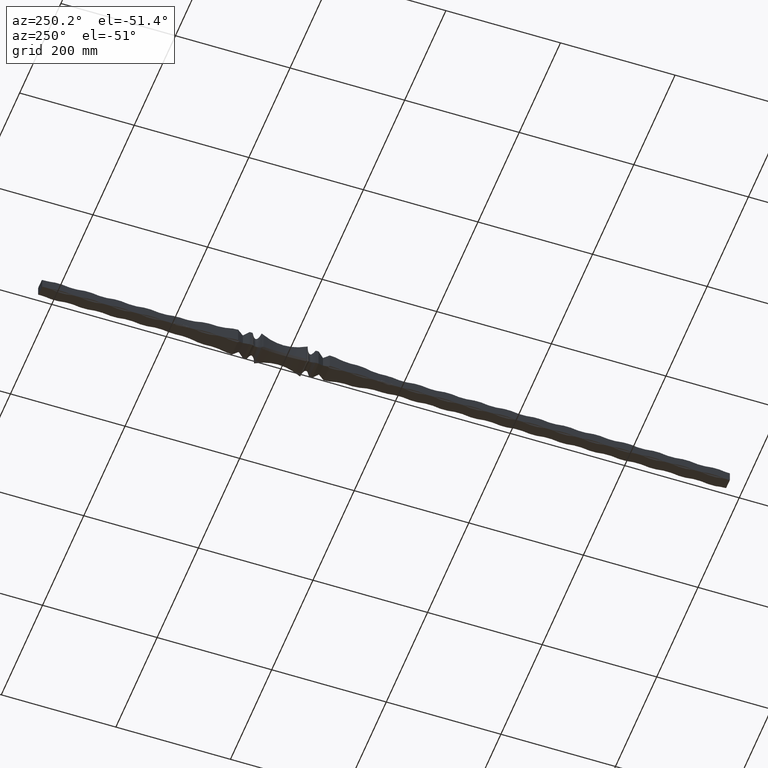
[diagram: clean part render]
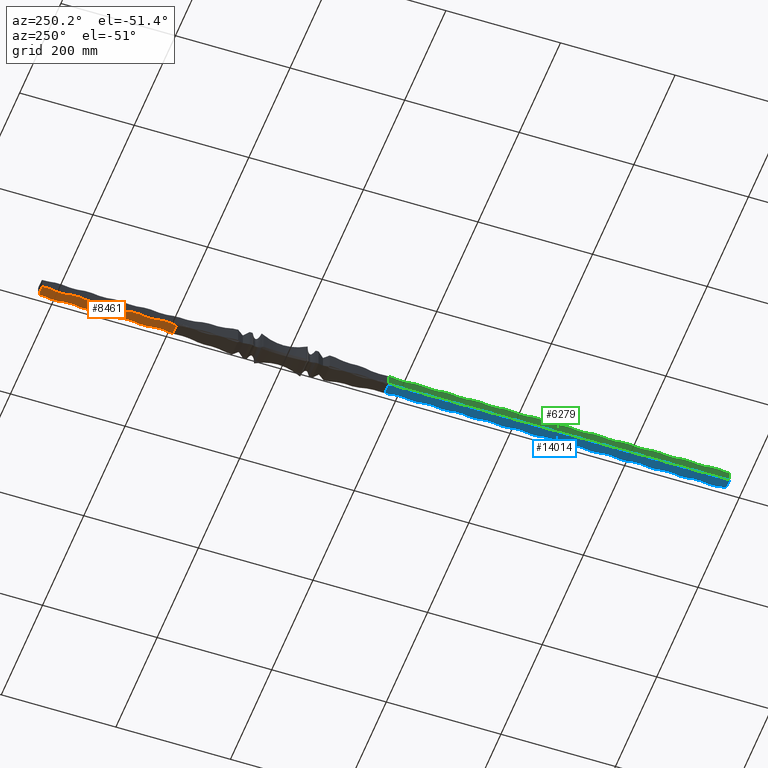
[diagram: same view with three faces highlighted in distinct colors, each labeled with its STEP entity id]
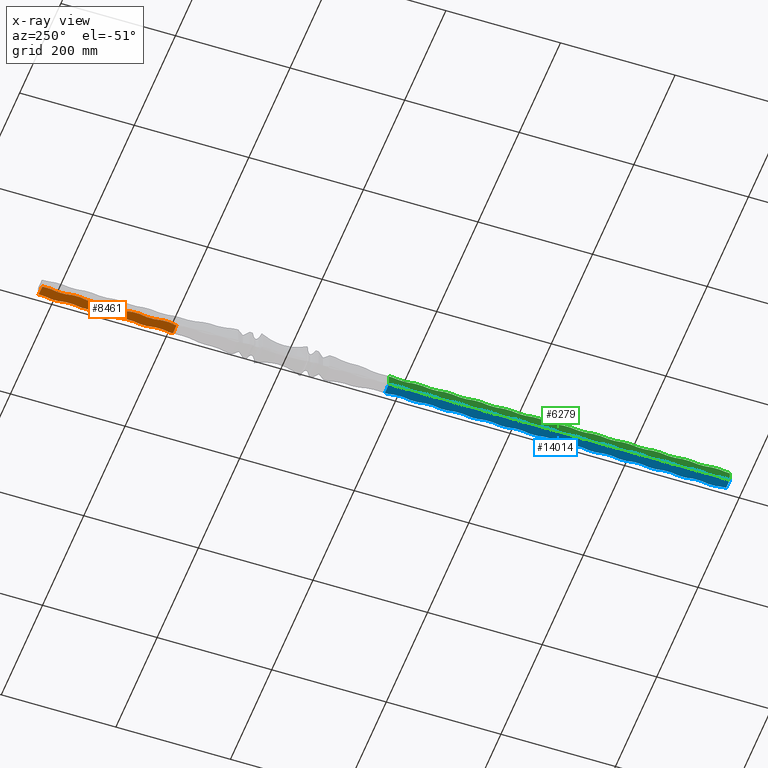
[diagram: x-ray of the same camera — body ghosted, the three highlighted faces saturated]
A machine part, auxiliary view with three faces highlighted in distinct colors.
The next image is the same camera in x-ray (body ghosted, the three faces saturated) — at least one of them is partly hidden behind the body in this view.
Their STEP definitions:

[orange] entity #8461 — the highlighted planar face has unit normal (0, -0, 1).
#26 = CIRCLE ( 'NONE', #9226, 81.25000000000012790 ) ;
#81 = CARTESIAN_POINT ( 'NONE',  ( -9.999999999999122480, 262.0000000000011937, -9.999999999999994671 ) ) ;
#165 = ORIENTED_EDGE ( 'NONE', *, *, #3137, .T. ) ;
#362 = LINE ( 'NONE', #15082, #10746 ) ;
#389 = LINE ( 'NONE', #2151, #588 ) ;
#477 = EDGE_CURVE ( 'NONE', #6919, #8864, #26, .T. ) ;
#525 = DIRECTION ( 'NONE',  ( 1.000000000000000000, 0.000000000000000000, 0.000000000000000000 ) ) ;
#588 = VECTOR ( 'NONE', #8401, 1000.000000000000000 ) ;
#864 = EDGE_CURVE ( 'NONE', #4898, #14855, #389, .T. ) ;
#872 = VERTEX_POINT ( 'NONE', #7276 ) ;
#958 = LINE ( 'NONE', #13800, #11564 ) ;
#986 = EDGE_CURVE ( 'NONE', #3623, #9154, #958, .T. ) ;
#1126 = ORIENTED_EDGE ( 'NONE', *, *, #6304, .T. ) ;
#1354 = DIRECTION ( 'NONE',  ( 0.000000000000000000, -0.000000000000000000, 1.000000000000000000 ) ) ;
#1476 = CARTESIAN_POINT ( 'NONE',  ( -9.999999999999220179, 314.0000000000010800, -9.999999999999994671 ) ) ;
#1612 = FACE_OUTER_BOUND ( 'NONE', #11015, .T. ) ;
#1617 = VERTEX_POINT ( 'NONE', #7790 ) ;
#1696 = LINE ( 'NONE', #14626, #5657 ) ;
#1832 = DIRECTION ( 'NONE',  ( 0.000000000000000000, -0.000000000000000000, 1.000000000000000000 ) ) ;
#2069 = VERTEX_POINT ( 'NONE', #81 ) ;
#2125 = CARTESIAN_POINT ( 'NONE',  ( 10.00000000000000178, 397.9999999999999432, -10.00000000000071765 ) ) ;
#2151 = CARTESIAN_POINT ( 'NONE',  ( 10.00000000000000178, 868.2842712474619020, -9.999999999999996447 ) ) ;
#2368 = CARTESIAN_POINT ( 'NONE',  ( -10.00000000000000000, 868.2842712474619020, -9.999999999999996447 ) ) ;
#2466 = CARTESIAN_POINT ( 'NONE',  ( 88.75000000000012790, 262.0000000000000000, -10.00000000000108002 ) ) ;
#2483 = ORIENTED_EDGE ( 'NONE', *, *, #4403, .T. ) ;
#2650 = CARTESIAN_POINT ( 'NONE',  ( 88.75000000000012790, 209.9999999999999716, -10.00000000000119904 ) ) ;
#2933 = AXIS2_PLACEMENT_3D ( 'NONE', #2466, #3727, #13790 ) ;
#3046 = ORIENTED_EDGE ( 'NONE', *, *, #13322, .T. ) ;
#3137 = EDGE_CURVE ( 'NONE', #13549, #14918, #4293, .T. ) ;
#3195 = EDGE_CURVE ( 'NONE', #11983, #3825, #9417, .T. ) ;
#3264 = ORIENTED_EDGE ( 'NONE', *, *, #3979, .T. ) ;
#3269 = EDGE_CURVE ( 'NONE', #2069, #1617, #10172, .T. ) ;
#3359 = CARTESIAN_POINT ( 'NONE',  ( 10.00000000000000178, 185.0000000000000000, -9.999999999999996447 ) ) ;
#3413 = ORIENTED_EDGE ( 'NONE', *, *, #7853, .F. ) ;
#3418 = EDGE_CURVE ( 'NONE', #13858, #3825, #5620, .T. ) ;
#3470 = EDGE_CURVE ( 'NONE', #3569, #1617, #362, .T. ) ;
#3501 = CARTESIAN_POINT ( 'NONE',  ( -9.999999999999220179, 354.0000000000000568, -10.00000000000024869 ) ) ;
#3569 = VERTEX_POINT ( 'NONE', #1476 ) ;
#3623 = VERTEX_POINT ( 'NONE', #12695 ) ;
#3692 = ORIENTED_EDGE ( 'NONE', *, *, #7490, .F. ) ;
#3727 = DIRECTION ( 'NONE',  ( 0.000000000000000000, -0.000000000000000000, 1.000000000000000000 ) ) ;
#3729 = CARTESIAN_POINT ( 'NONE',  ( 10.00000000000000178, 868.2842712474619020, -9.999999999999996447 ) ) ;
#3825 = VERTEX_POINT ( 'NONE', #11187 ) ;
#3954 = DIRECTION ( 'NONE',  ( 0.000000000000000000, -0.000000000000000000, 1.000000000000000000 ) ) ;
#3979 = EDGE_CURVE ( 'NONE', #4799, #6690, #8195, .T. ) ;
#4041 = CARTESIAN_POINT ( 'NONE',  ( 10.00000000000000178, 420.0000000000000000, -9.999999999999996447 ) ) ;
#4047 = CARTESIAN_POINT ( 'NONE',  ( 7.524619114466439385, 420.0000000000000000, -9.999999999999996447 ) ) ;
#4069 = CARTESIAN_POINT ( 'NONE',  ( -88.74999999999927525, 282.0000000000000000, -10.00000000000028422 ) ) ;
#4253 = CIRCLE ( 'NONE', #15529, 81.25000000000015632 ) ;
#4293 = LINE ( 'NONE', #10595, #15259 ) ;
#4297 = CARTESIAN_POINT ( 'NONE',  ( 10.00000000000000178, 868.2842712474619020, -9.999999999999996447 ) ) ;
#4318 = DIRECTION ( 'NONE',  ( 1.000000000000000000, 0.000000000000000000, 0.000000000000000000 ) ) ;
#4326 = AXIS2_PLACEMENT_3D ( 'NONE', #14420, #5645, #525 ) ;
#4351 = CARTESIAN_POINT ( 'NONE',  ( 10.00000000000000178, 868.2842712474619020, -9.999999999999996447 ) ) ;
#4403 = EDGE_CURVE ( 'NONE', #14570, #14707, #7581, .T. ) ;
#4442 = CARTESIAN_POINT ( 'NONE',  ( -9.999999999999024780, 250.0000000000000000, -10.00000000000030731 ) ) ;
#4483 = ORIENTED_EDGE ( 'NONE', *, *, #3195, .T. ) ;
#4522 = ORIENTED_EDGE ( 'NONE', *, *, #5736, .T. ) ;
#4799 = VERTEX_POINT ( 'NONE', #4047 ) ;
#4855 = AXIS2_PLACEMENT_3D ( 'NONE', #8097, #11847, #4318 ) ;
#4898 = VERTEX_POINT ( 'NONE', #15782 ) ;
#4954 = AXIS2_PLACEMENT_3D ( 'NONE', #8300, #10967, #12115 ) ;
#5230 = DIRECTION ( 'NONE',  ( 0.000000000000000000, -0.000000000000000000, 1.000000000000000000 ) ) ;
#5370 = ORIENTED_EDGE ( 'NONE', *, *, #3470, .F. ) ;
#5618 = DIRECTION ( 'NONE',  ( 1.000000000000000000, 0.000000000000000000, -0.000000000000000000 ) ) ;
#5620 = LINE ( 'NONE', #9710, #8221 ) ;
#5645 = DIRECTION ( 'NONE',  ( 0.000000000000000000, -0.000000000000000000, 1.000000000000000000 ) ) ;
#5657 = VECTOR ( 'NONE', #7110, 1000.000000000000000 ) ;
#5736 = EDGE_CURVE ( 'NONE', #9154, #13549, #15272, .T. ) ;
#6196 = CARTESIAN_POINT ( 'NONE',  ( -88.74999999999917577, 229.9999999999999716, -10.00000000000031442 ) ) ;
#6206 = DIRECTION ( 'NONE',  ( -0.000000000000000000, -1.000000000000000000, -0.000000000000000000 ) ) ;
#6304 = EDGE_CURVE ( 'NONE', #11570, #4898, #13325, .T. ) ;
#6315 = EDGE_CURVE ( 'NONE', #14918, #14570, #1696, .T. ) ;
#6338 = LINE ( 'NONE', #4351, #14963 ) ;
#6398 = LINE ( 'NONE', #2368, #16004 ) ;
#6611 = AXIS2_PLACEMENT_3D ( 'NONE', #13092, #3954, #12772 ) ;
#6667 = CIRCLE ( 'NONE', #4855, 81.25000000000015632 ) ;
#6690 = VERTEX_POINT ( 'NONE', #2125 ) ;
#6748 = CARTESIAN_POINT ( 'NONE',  ( 10.00000000000000178, 229.9999999999999716, -10.00000000000119904 ) ) ;
#6919 = VERTEX_POINT ( 'NONE', #15633 ) ;
#7110 = DIRECTION ( 'NONE',  ( -1.000000000000000000, -0.000000000000000000, -0.000000000000000000 ) ) ;
#7276 = CARTESIAN_POINT ( 'NONE',  ( -9.518929705575139621, 420.0000000000000000, -9.999999999999996447 ) ) ;
#7352 = ORIENTED_EDGE ( 'NONE', *, *, #986, .T. ) ;
#7410 = VERTEX_POINT ( 'NONE', #12192 ) ;
#7445 = DIRECTION ( 'NONE',  ( -0.000000000000000000, -1.000000000000000000, -0.000000000000000000 ) ) ;
#7447 = EDGE_CURVE ( 'NONE', #2069, #15252, #12628, .T. ) ;
#7490 = EDGE_CURVE ( 'NONE', #7410, #14707, #11262, .T. ) ;
#7526 = VECTOR ( 'NONE', #9807, 1000.000000000000000 ) ;
#7581 = CIRCLE ( 'NONE', #8267, 81.25000000000015632 ) ;
#7790 = CARTESIAN_POINT ( 'NONE',  ( -9.999999999999122480, 302.0000000000000568, -10.00000000000027711 ) ) ;
#7853 = EDGE_CURVE ( 'NONE', #4799, #872, #14391, .T. ) ;
#7874 = CARTESIAN_POINT ( 'NONE',  ( -9.999999999999317879, 366.0000000000009095, -9.999999999999994671 ) ) ;
#7891 = CIRCLE ( 'NONE', #2933, 81.25000000000012790 ) ;
#7939 = VECTOR ( 'NONE', #11284, 1000.000000000000000 ) ;
#8078 = PLANE ( 'NONE',  #9079 ) ;
#8097 = CARTESIAN_POINT ( 'NONE',  ( -88.74999999999937472, 334.0000000000000000, -10.00000000000025580 ) ) ;
#8195 = CIRCLE ( 'NONE', #4326, 81.25000000000012790 ) ;
#8221 = VECTOR ( 'NONE', #13574, 1000.000000000000000 ) ;
#8267 = AXIS2_PLACEMENT_3D ( 'NONE', #15216, #1354, #10162 ) ;
#8300 = CARTESIAN_POINT ( 'NONE',  ( -88.74999999999947420, 386.0000000000000000, -10.00000000000022382 ) ) ;
#8339 = CARTESIAN_POINT ( 'NONE',  ( 10.00000000000000178, 282.0000000000000000, -10.00000000000108002 ) ) ;
#8401 = DIRECTION ( 'NONE',  ( -0.000000000000000000, -1.000000000000000000, -0.000000000000000000 ) ) ;
#8461 = ADVANCED_FACE ( 'NONE', ( #1612 ), #8078, .F. ) ;
#8552 = EDGE_CURVE ( 'NONE', #6690, #6919, #6338, .T. ) ;
#8864 = VERTEX_POINT ( 'NONE', #11224 ) ;
#8884 = CARTESIAN_POINT ( 'NONE',  ( -10.00000000000000000, 868.2842712474619020, -9.999999999999996447 ) ) ;
#8968 = CARTESIAN_POINT ( 'NONE',  ( 88.75000000000012790, 366.0000000000000000, -10.00000000000083844 ) ) ;
#8991 = AXIS2_PLACEMENT_3D ( 'NONE', #4069, #9333, #12817 ) ;
#9037 = DIRECTION ( 'NONE',  ( -1.000000000000000000, 0.000000000000000000, 0.000000000000000000 ) ) ;
#9079 = AXIS2_PLACEMENT_3D ( 'NONE', #4297, #11935, #5618 ) ;
#9154 = VERTEX_POINT ( 'NONE', #6748 ) ;
#9164 = CARTESIAN_POINT ( 'NONE',  ( 10.00000000000000178, 334.0000000000000000, -10.00000000000095923 ) ) ;
#9179 = CARTESIAN_POINT ( 'NONE',  ( -7.802100089006794192, 185.0000000000000568, -10.00000000000034461 ) ) ;
#9226 = AXIS2_PLACEMENT_3D ( 'NONE', #8968, #10102, #10156 ) ;
#9300 = VERTEX_POINT ( 'NONE', #3501 ) ;
#9333 = DIRECTION ( 'NONE',  ( 0.000000000000000000, -0.000000000000000000, 1.000000000000000000 ) ) ;
#9417 = CIRCLE ( 'NONE', #4954, 81.25000000000015632 ) ;
#9473 = CARTESIAN_POINT ( 'NONE',  ( -9.999999999999415579, 418.0000000000000000, -10.00000000000018829 ) ) ;
#9710 = CARTESIAN_POINT ( 'NONE',  ( -10.00000000000000000, 868.2842712474619020, -9.999999999999996447 ) ) ;
#9733 = DIRECTION ( 'NONE',  ( -0.000000000000000000, -1.000000000000000000, -0.000000000000000000 ) ) ;
#9807 = DIRECTION ( 'NONE',  ( -0.000000000000000000, -1.000000000000000000, -0.000000000000000000 ) ) ;
#9944 = VECTOR ( 'NONE', #15410, 1000.000000000000000 ) ;
#10102 = DIRECTION ( 'NONE',  ( 0.000000000000000000, -0.000000000000000000, 1.000000000000000000 ) ) ;
#10156 = DIRECTION ( 'NONE',  ( 1.000000000000000000, 0.000000000000000000, 0.000000000000000000 ) ) ;
#10162 = DIRECTION ( 'NONE',  ( 1.000000000000000000, 0.000000000000000000, 0.000000000000000000 ) ) ;
#10172 = CIRCLE ( 'NONE', #8991, 81.25000000000015632 ) ;
#10191 = ORIENTED_EDGE ( 'NONE', *, *, #8552, .T. ) ;
#10303 = VECTOR ( 'NONE', #9037, 1000.000000000000000 ) ;
#10595 = CARTESIAN_POINT ( 'NONE',  ( 10.00000000000000178, 868.2842712474619020, -9.999999999999996447 ) ) ;
#10745 = EDGE_CURVE ( 'NONE', #14855, #3623, #7891, .T. ) ;
#10746 = VECTOR ( 'NONE', #6206, 1000.000000000000000 ) ;
#10765 = DIRECTION ( 'NONE',  ( 1.000000000000000000, 0.000000000000000000, 0.000000000000000000 ) ) ;
#10855 = ORIENTED_EDGE ( 'NONE', *, *, #7447, .F. ) ;
#10967 = DIRECTION ( 'NONE',  ( 0.000000000000000000, -0.000000000000000000, 1.000000000000000000 ) ) ;
#11015 = EDGE_LOOP ( 'NONE', ( #12125, #2483, #3692, #16207, #10855, #15868, #5370, #11159, #14953, #4483, #12711, #3046, #3413, #3264, #10191, #12827, #14642, #1126, #14217, #14354, #7352, #4522, #165 ) ) ;
#11120 = LINE ( 'NONE', #3729, #9944 ) ;
#11141 = EDGE_CURVE ( 'NONE', #3569, #9300, #6667, .T. ) ;
#11159 = ORIENTED_EDGE ( 'NONE', *, *, #11141, .T. ) ;
#11187 = CARTESIAN_POINT ( 'NONE',  ( -9.999999999999317879, 406.0000000000000000, -10.00000000000021672 ) ) ;
#11224 = CARTESIAN_POINT ( 'NONE',  ( 10.00000000000000888, 346.0000000000000568, -10.00000000000083844 ) ) ;
#11262 = LINE ( 'NONE', #8884, #7939 ) ;
#11284 = DIRECTION ( 'NONE',  ( -0.000000000000000000, -1.000000000000000000, -0.000000000000000000 ) ) ;
#11346 = DIRECTION ( 'NONE',  ( -0.000000000000000000, -1.000000000000000000, -0.000000000000000000 ) ) ;
#11558 = CIRCLE ( 'NONE', #15316, 81.25000000000015632 ) ;
#11564 = VECTOR ( 'NONE', #11346, 1000.000000000000000 ) ;
#11570 = VERTEX_POINT ( 'NONE', #9164 ) ;
#11847 = DIRECTION ( 'NONE',  ( 0.000000000000000000, -0.000000000000000000, 1.000000000000000000 ) ) ;
#11935 = DIRECTION ( 'NONE',  ( 0.000000000000000000, -0.000000000000000000, 1.000000000000000000 ) ) ;
#11983 = VERTEX_POINT ( 'NONE', #7874 ) ;
#12115 = DIRECTION ( 'NONE',  ( 1.000000000000000000, 0.000000000000000000, 0.000000000000000000 ) ) ;
#12125 = ORIENTED_EDGE ( 'NONE', *, *, #6315, .T. ) ;
#12192 = CARTESIAN_POINT ( 'NONE',  ( -9.999999999999024780, 210.0000000000012221, -9.999999999999994671 ) ) ;
#12556 = DIRECTION ( 'NONE',  ( 1.000000000000000000, 0.000000000000000000, 0.000000000000000000 ) ) ;
#12563 = CARTESIAN_POINT ( 'NONE',  ( 10.00000000000000888, 189.9999999999999716, -10.00000000000119904 ) ) ;
#12628 = LINE ( 'NONE', #14762, #7526 ) ;
#12695 = CARTESIAN_POINT ( 'NONE',  ( 10.00000000000000888, 242.0000000000000284, -10.00000000000108002 ) ) ;
#12711 = ORIENTED_EDGE ( 'NONE', *, *, #3418, .F. ) ;
#12772 = DIRECTION ( 'NONE',  ( 1.000000000000000000, 0.000000000000000000, 0.000000000000000000 ) ) ;
#12817 = DIRECTION ( 'NONE',  ( 1.000000000000000000, 0.000000000000000000, 0.000000000000000000 ) ) ;
#12827 = ORIENTED_EDGE ( 'NONE', *, *, #477, .T. ) ;
#12925 = CARTESIAN_POINT ( 'NONE',  ( -9.999999999998927080, 198.0000000000000568, -10.00000000000033928 ) ) ;
#13092 = CARTESIAN_POINT ( 'NONE',  ( 88.75000000000012790, 314.0000000000000000, -10.00000000000095923 ) ) ;
#13199 = DIRECTION ( 'NONE',  ( -0.000000000000000000, -1.000000000000000000, -0.000000000000000000 ) ) ;
#13322 = EDGE_CURVE ( 'NONE', #13858, #872, #11558, .T. ) ;
#13325 = CIRCLE ( 'NONE', #6611, 81.25000000000012790 ) ;
#13399 = DIRECTION ( 'NONE',  ( 1.000000000000000000, 0.000000000000000000, 0.000000000000000000 ) ) ;
#13549 = VERTEX_POINT ( 'NONE', #12563 ) ;
#13574 = DIRECTION ( 'NONE',  ( -0.000000000000000000, -1.000000000000000000, -0.000000000000000000 ) ) ;
#13723 = DIRECTION ( 'NONE',  ( 0.000000000000000000, -0.000000000000000000, 1.000000000000000000 ) ) ;
#13790 = DIRECTION ( 'NONE',  ( 1.000000000000000000, 0.000000000000000000, 0.000000000000000000 ) ) ;
#13800 = CARTESIAN_POINT ( 'NONE',  ( 10.00000000000000178, 868.2842712474619020, -9.999999999999996447 ) ) ;
#13858 = VERTEX_POINT ( 'NONE', #9473 ) ;
#13905 = EDGE_CURVE ( 'NONE', #7410, #15252, #4253, .T. ) ;
#14217 = ORIENTED_EDGE ( 'NONE', *, *, #864, .T. ) ;
#14354 = ORIENTED_EDGE ( 'NONE', *, *, #10745, .T. ) ;
#14391 = LINE ( 'NONE', #4041, #10303 ) ;
#14420 = CARTESIAN_POINT ( 'NONE',  ( 88.75000000000012790, 418.0000000000000000, -10.00000000000071765 ) ) ;
#14476 = EDGE_CURVE ( 'NONE', #11983, #9300, #6398, .T. ) ;
#14570 = VERTEX_POINT ( 'NONE', #9179 ) ;
#14626 = CARTESIAN_POINT ( 'NONE',  ( -10.00000000000000000, 185.0000000000000000, -9.999999999999996447 ) ) ;
#14642 = ORIENTED_EDGE ( 'NONE', *, *, #16021, .T. ) ;
#14707 = VERTEX_POINT ( 'NONE', #12925 ) ;
#14762 = CARTESIAN_POINT ( 'NONE',  ( -10.00000000000000000, 868.2842712474619020, -9.999999999999996447 ) ) ;
#14855 = VERTEX_POINT ( 'NONE', #8339 ) ;
#14918 = VERTEX_POINT ( 'NONE', #3359 ) ;
#14953 = ORIENTED_EDGE ( 'NONE', *, *, #14476, .F. ) ;
#14963 = VECTOR ( 'NONE', #13199, 1000.000000000000000 ) ;
#15082 = CARTESIAN_POINT ( 'NONE',  ( -10.00000000000000000, 868.2842712474619020, -9.999999999999996447 ) ) ;
#15136 = AXIS2_PLACEMENT_3D ( 'NONE', #2650, #5230, #12556 ) ;
#15216 = CARTESIAN_POINT ( 'NONE',  ( -88.74999999999907629, 178.0000000000000568, -10.00000000000034461 ) ) ;
#15252 = VERTEX_POINT ( 'NONE', #4442 ) ;
#15259 = VECTOR ( 'NONE', #9733, 1000.000000000000000 ) ;
#15272 = CIRCLE ( 'NONE', #15136, 81.25000000000012790 ) ;
#15316 = AXIS2_PLACEMENT_3D ( 'NONE', #15716, #1832, #10765 ) ;
#15410 = DIRECTION ( 'NONE',  ( -0.000000000000000000, -1.000000000000000000, -0.000000000000000000 ) ) ;
#15529 = AXIS2_PLACEMENT_3D ( 'NONE', #6196, #13723, #13399 ) ;
#15633 = CARTESIAN_POINT ( 'NONE',  ( 10.00000000000000178, 386.0000000000000000, -10.00000000000083844 ) ) ;
#15716 = CARTESIAN_POINT ( 'NONE',  ( -88.74999999999955946, 438.0000000000000000, -10.00000000000019362 ) ) ;
#15782 = CARTESIAN_POINT ( 'NONE',  ( 10.00000000000000888, 294.0000000000000568, -10.00000000000095923 ) ) ;
#15868 = ORIENTED_EDGE ( 'NONE', *, *, #3269, .T. ) ;
#16004 = VECTOR ( 'NONE', #7445, 1000.000000000000000 ) ;
#16021 = EDGE_CURVE ( 'NONE', #8864, #11570, #11120, .T. ) ;
#16207 = ORIENTED_EDGE ( 'NONE', *, *, #13905, .T. ) ;

[blue] entity #14014 — the highlighted planar face has unit normal (-0, 0, 1).
#58 = DIRECTION ( 'NONE',  ( 1.000000000000000000, 0.000000000000000000, 0.000000000000000000 ) ) ;
#176 = DIRECTION ( 'NONE',  ( 1.000000000000000000, 0.000000000000000000, 0.000000000000000000 ) ) ;
#232 = EDGE_CURVE ( 'NONE', #2283, #817, #8840, .T. ) ;
#236 = AXIS2_PLACEMENT_3D ( 'NONE', #15073, #15224, #1462 ) ;
#322 = CARTESIAN_POINT ( 'NONE',  ( -9.999999999999220179, -354.0000000000000568, -10.00000000000024869 ) ) ;
#360 = DIRECTION ( 'NONE',  ( -0.000000000000000000, 1.000000000000000000, -0.000000000000000000 ) ) ;
#434 = CARTESIAN_POINT ( 'NONE',  ( 88.75000000000012790, -730.0000000000000000, -9.999999999999996447 ) ) ;
#449 = VERTEX_POINT ( 'NONE', #9582 ) ;
#456 = EDGE_CURVE ( 'NONE', #12607, #13718, #1144, .T. ) ;
#463 = CARTESIAN_POINT ( 'NONE',  ( 10.00000000000000178, -2008.284271247461675, -9.999999999999996447 ) ) ;
#482 = CARTESIAN_POINT ( 'NONE',  ( -10.00000000000000000, -2008.284271247461675, -9.999999999999996447 ) ) ;
#502 = DIRECTION ( 'NONE',  ( -1.000000000000000000, 0.000000000000000000, -0.000000000000000000 ) ) ;
#575 = EDGE_CURVE ( 'NONE', #13027, #14165, #8634, .T. ) ;
#670 = LINE ( 'NONE', #482, #7509 ) ;
#775 = ORIENTED_EDGE ( 'NONE', *, *, #10256, .T. ) ;
#802 = CARTESIAN_POINT ( 'NONE',  ( -10.00000000000002309, -313.9999999999968736, -10.00000000000025580 ) ) ;
#815 = CARTESIAN_POINT ( 'NONE',  ( -10.00000000000002309, -365.9999999999972715, -10.00000000000022382 ) ) ;
#817 = VERTEX_POINT ( 'NONE', #1868 ) ;
#893 = CARTESIAN_POINT ( 'NONE',  ( 10.00000000000000178, -2008.284271247461675, -9.999999999999996447 ) ) ;
#934 = DIRECTION ( 'NONE',  ( 1.000000000000000000, 0.000000000000000000, 0.000000000000000000 ) ) ;
#957 = CARTESIAN_POINT ( 'NONE',  ( 10.00000000000012079, -762.0000000000000000, -10.00000000000003375 ) ) ;
#987 = CARTESIAN_POINT ( 'NONE',  ( -10.00000000000000000, -2008.284271247461675, -9.999999999999996447 ) ) ;
#1027 = CARTESIAN_POINT ( 'NONE',  ( 10.00000000000000178, -2008.284271247461675, -9.999999999999996447 ) ) ;
#1117 = ORIENTED_EDGE ( 'NONE', *, *, #11384, .T. ) ;
#1144 = LINE ( 'NONE', #4491, #15853 ) ;
#1151 = CARTESIAN_POINT ( 'NONE',  ( -10.00000000000000178, -770.0000000000000000, -10.00000000000000711 ) ) ;
#1169 = CIRCLE ( 'NONE', #1658, 81.25000000000015632 ) ;
#1189 = CARTESIAN_POINT ( 'NONE',  ( -88.75000000000005684, -698.0000000000000000, -10.00000000000004441 ) ) ;
#1233 = DIRECTION ( 'NONE',  ( 1.000000000000000000, 0.000000000000000000, 0.000000000000000000 ) ) ;
#1269 = AXIS2_PLACEMENT_3D ( 'NONE', #3640, #2429, #1233 ) ;
#1295 = DIRECTION ( 'NONE',  ( 1.000000000000000000, 0.000000000000000000, 0.000000000000000000 ) ) ;
#1333 = DIRECTION ( 'NONE',  ( 1.000000000000000000, 0.000000000000000000, 0.000000000000000000 ) ) ;
#1362 = PLANE ( 'NONE',  #236 ) ;
#1393 = ORIENTED_EDGE ( 'NONE', *, *, #1559, .F. ) ;
#1398 = DIRECTION ( 'NONE',  ( -0.000000000000000000, 0.000000000000000000, 1.000000000000000000 ) ) ;
#1410 = DIRECTION ( 'NONE',  ( -0.000000000000000000, 0.000000000000000000, 1.000000000000000000 ) ) ;
#1420 = EDGE_CURVE ( 'NONE', #14776, #13228, #10559, .T. ) ;
#1462 = DIRECTION ( 'NONE',  ( 1.000000000000000000, 0.000000000000000000, 0.000000000000000000 ) ) ;
#1553 = CIRCLE ( 'NONE', #15872, 81.25000000000015632 ) ;
#1559 = EDGE_CURVE ( 'NONE', #9529, #7806, #11998, .T. ) ;
#1604 = EDGE_CURVE ( 'NONE', #12327, #8712, #9868, .T. ) ;
#1629 = CARTESIAN_POINT ( 'NONE',  ( -88.74999999999995737, -646.0000000000000000, -10.00000000000007461 ) ) ;
#1658 = AXIS2_PLACEMENT_3D ( 'NONE', #7565, #8853, #1295 ) ;
#1661 = CARTESIAN_POINT ( 'NONE',  ( -10.00000000000000000, -2008.284271247461675, -9.999999999999996447 ) ) ;
#1680 = DIRECTION ( 'NONE',  ( -0.000000000000000000, 1.000000000000000000, -0.000000000000000000 ) ) ;
#1737 = VECTOR ( 'NONE', #5554, 1000.000000000000000 ) ;
#1821 = EDGE_CURVE ( 'NONE', #6051, #11890, #4510, .T. ) ;
#1868 = CARTESIAN_POINT ( 'NONE',  ( 10.00000000000003730, -438.0000000000001137, -10.00000000000071765 ) ) ;
#1917 = CARTESIAN_POINT ( 'NONE',  ( -10.00000000000002309, -469.9999999999980105, -10.00000000000016520 ) ) ;
#1930 = DIRECTION ( 'NONE',  ( 1.000000000000000000, 0.000000000000000000, 0.000000000000000000 ) ) ;
#1949 = DIRECTION ( 'NONE',  ( -0.000000000000000000, 1.000000000000000000, -0.000000000000000000 ) ) ;
#1952 = VECTOR ( 'NONE', #15426, 1000.000000000000000 ) ;
#1987 = CIRCLE ( 'NONE', #14836, 81.25000000000015632 ) ;
#2002 = DIRECTION ( 'NONE',  ( -0.000000000000000000, 1.000000000000000000, -0.000000000000000000 ) ) ;
#2140 = EDGE_CURVE ( 'NONE', #14165, #7596, #9107, .T. ) ;
#2177 = VERTEX_POINT ( 'NONE', #13868 ) ;
#2185 = CIRCLE ( 'NONE', #5484, 81.25000000000015632 ) ;
#2187 = ORIENTED_EDGE ( 'NONE', *, *, #9592, .T. ) ;
#2203 = EDGE_CURVE ( 'NONE', #11286, #5957, #16118, .T. ) ;
#2235 = ORIENTED_EDGE ( 'NONE', *, *, #2609, .T. ) ;
#2283 = VERTEX_POINT ( 'NONE', #4790 ) ;
#2288 = CIRCLE ( 'NONE', #4429, 81.25000000000012790 ) ;
#2327 = CARTESIAN_POINT ( 'NONE',  ( 10.00000000000000178, -2008.284271247461675, -9.999999999999996447 ) ) ;
#2349 = VECTOR ( 'NONE', #10422, 1000.000000000000000 ) ;
#2364 = VECTOR ( 'NONE', #8275, 1000.000000000000000 ) ;
#2429 = DIRECTION ( 'NONE',  ( -0.000000000000000000, 0.000000000000000000, 1.000000000000000000 ) ) ;
#2566 = LINE ( 'NONE', #10787, #6319 ) ;
#2600 = VERTEX_POINT ( 'NONE', #802 ) ;
#2609 = EDGE_CURVE ( 'NONE', #13116, #14212, #2566, .T. ) ;
#2685 = DIRECTION ( 'NONE',  ( 1.000000000000000000, 0.000000000000000000, 0.000000000000000000 ) ) ;
#2695 = CARTESIAN_POINT ( 'NONE',  ( -9.999999999999708677, -614.0000000000000000, -10.00000000000009770 ) ) ;
#2699 = ORIENTED_EDGE ( 'NONE', *, *, #14024, .T. ) ;
#2794 = CARTESIAN_POINT ( 'NONE',  ( -88.74999999999985789, -594.0000000000000000, -10.00000000000010481 ) ) ;
#2805 = CARTESIAN_POINT ( 'NONE',  ( 10.00000000000003730, -230.0000000000000853, -10.00000000000119904 ) ) ;
#2900 = CARTESIAN_POINT ( 'NONE',  ( -10.00000000000000000, -780.0000000000000000, -9.999999999999992895 ) ) ;
#2962 = ORIENTED_EDGE ( 'NONE', *, *, #2203, .T. ) ;
#2963 = VECTOR ( 'NONE', #16092, 1000.000000000000000 ) ;
#3001 = EDGE_CURVE ( 'NONE', #2600, #10703, #14769, .T. ) ;
#3036 = AXIS2_PLACEMENT_3D ( 'NONE', #14759, #13449, #934 ) ;
#3106 = EDGE_CURVE ( 'NONE', #13228, #5928, #5084, .T. ) ;
#3128 = CIRCLE ( 'NONE', #4416, 81.25000000000015632 ) ;
#3145 = DIRECTION ( 'NONE',  ( -0.000000000000000000, 0.000000000000000000, 1.000000000000000000 ) ) ;
#3430 = ORIENTED_EDGE ( 'NONE', *, *, #5897, .T. ) ;
#3464 = ORIENTED_EDGE ( 'NONE', *, *, #11339, .T. ) ;
#3481 = VERTEX_POINT ( 'NONE', #1151 ) ;
#3631 = AXIS2_PLACEMENT_3D ( 'NONE', #434, #15190, #2685 ) ;
#3640 = CARTESIAN_POINT ( 'NONE',  ( -88.74999999999927525, -282.0000000000000000, -10.00000000000028422 ) ) ;
#3651 = DIRECTION ( 'NONE',  ( -0.000000000000000000, 1.000000000000000000, -0.000000000000000000 ) ) ;
#3788 = CARTESIAN_POINT ( 'NONE',  ( 88.75000000000012790, -470.0000000000000000, -10.00000000000059863 ) ) ;
#3796 = ORIENTED_EDGE ( 'NONE', *, *, #4936, .F. ) ;
#3820 = CARTESIAN_POINT ( 'NONE',  ( -10.00000000000002309, -209.9999999999960778, -10.00000000000031442 ) ) ;
#3887 = VECTOR ( 'NONE', #11529, 1000.000000000000000 ) ;
#3913 = DIRECTION ( 'NONE',  ( -0.000000000000000000, 0.000000000000000000, 1.000000000000000000 ) ) ;
#4112 = CARTESIAN_POINT ( 'NONE',  ( 88.75000000000012790, -209.9999999999999716, -10.00000000000119904 ) ) ;
#4120 = ORIENTED_EDGE ( 'NONE', *, *, #14968, .T. ) ;
#4149 = ORIENTED_EDGE ( 'NONE', *, *, #16117, .T. ) ;
#4257 = EDGE_CURVE ( 'NONE', #6853, #4592, #6199, .T. ) ;
#4311 = DIRECTION ( 'NONE',  ( -0.000000000000000000, 1.000000000000000000, -0.000000000000000000 ) ) ;
#4314 = CARTESIAN_POINT ( 'NONE',  ( -9.999999999999806377, -666.0000000000000000, -10.00000000000006750 ) ) ;
#4416 = AXIS2_PLACEMENT_3D ( 'NONE', #2794, #5389, #15462 ) ;
#4429 = AXIS2_PLACEMENT_3D ( 'NONE', #8258, #4480, #1930 ) ;
#4460 = EDGE_CURVE ( 'NONE', #15889, #14571, #9190, .T. ) ;
#4480 = DIRECTION ( 'NONE',  ( -0.000000000000000000, 0.000000000000000000, 1.000000000000000000 ) ) ;
#4491 = CARTESIAN_POINT ( 'NONE',  ( -10.00000000000000000, -2008.284271247461675, -9.999999999999996447 ) ) ;
#4510 = LINE ( 'NONE', #12122, #13165 ) ;
#4547 = VECTOR ( 'NONE', #502, 1000.000000000000000 ) ;
#4583 = ORIENTED_EDGE ( 'NONE', *, *, #2140, .T. ) ;
#4592 = VERTEX_POINT ( 'NONE', #10470 ) ;
#4604 = ORIENTED_EDGE ( 'NONE', *, *, #7005, .F. ) ;
#4613 = VERTEX_POINT ( 'NONE', #6761 ) ;
#4614 = AXIS2_PLACEMENT_3D ( 'NONE', #10112, #1410, #12736 ) ;
#4710 = DIRECTION ( 'NONE',  ( -0.000000000000000000, 0.000000000000000000, 1.000000000000000000 ) ) ;
#4776 = EDGE_CURVE ( 'NONE', #2177, #12517, #9928, .T. ) ;
#4790 = CARTESIAN_POINT ( 'NONE',  ( 10.00000000000000178, -397.9999999999999432, -10.00000000000071765 ) ) ;
#4844 = EDGE_CURVE ( 'NONE', #14834, #5076, #8629, .T. ) ;
#4876 = ORIENTED_EDGE ( 'NONE', *, *, #8879, .T. ) ;
#4891 = CARTESIAN_POINT ( 'NONE',  ( -10.00000000000002309, -521.9999999999984084, -10.00000000000013323 ) ) ;
#4892 = CARTESIAN_POINT ( 'NONE',  ( 88.75000000000012790, -574.0000000000000000, -10.00000000000035705 ) ) ;
#4919 = ORIENTED_EDGE ( 'NONE', *, *, #9871, .T. ) ;
#4936 = EDGE_CURVE ( 'NONE', #5609, #11035, #12167, .T. ) ;
#4943 = CARTESIAN_POINT ( 'NONE',  ( 88.75000000000012790, -262.0000000000000000, -10.00000000000108002 ) ) ;
#4945 = EDGE_LOOP ( 'NONE', ( #11146, #1117, #1393, #14452, #4149, #15027, #3430, #7848, #8009, #9167, #14416, #4604, #11726, #13040, #8426, #10200, #7500, #7702, #4120, #7232, #775, #3796, #8942, #10000, #11829, #9315, #6263, #4583, #8516, #2187, #9104, #15232, #2235, #12469, #7047, #7776, #15442, #2962, #5312, #4876, #15699, #14362, #9781, #4919, #16137, #2699, #15566, #3464, #15435, #16152 ) ) ;
#5012 = VECTOR ( 'NONE', #6911, 1000.000000000000000 ) ;
#5050 = CARTESIAN_POINT ( 'NONE',  ( 88.75000000000012790, -418.0000000000000000, -10.00000000000071765 ) ) ;
#5076 = VERTEX_POINT ( 'NONE', #12465 ) ;
#5084 = CIRCLE ( 'NONE', #11697, 81.25000000000015632 ) ;
#5103 = EDGE_CURVE ( 'NONE', #12327, #5076, #14689, .T. ) ;
#5129 = CARTESIAN_POINT ( 'NONE',  ( 88.75000000000025580, -782.0000000000000000, -10.00000000000003375 ) ) ;
#5240 = EDGE_CURVE ( 'NONE', #14834, #7642, #2288, .T. ) ;
#5290 = CARTESIAN_POINT ( 'NONE',  ( -10.00000000000000000, -2008.284271247461675, -9.999999999999996447 ) ) ;
#5312 = ORIENTED_EDGE ( 'NONE', *, *, #10439, .T. ) ;
#5344 = CARTESIAN_POINT ( 'NONE',  ( -9.999999999999904077, -718.0000000000000000, -10.00000000000003730 ) ) ;
#5385 = DIRECTION ( 'NONE',  ( -0.000000000000000000, 0.000000000000000000, 1.000000000000000000 ) ) ;
#5389 = DIRECTION ( 'NONE',  ( -0.000000000000000000, 0.000000000000000000, 1.000000000000000000 ) ) ;
#5426 = EDGE_CURVE ( 'NONE', #449, #9603, #16067, .T. ) ;
#5464 = EDGE_CURVE ( 'NONE', #5609, #9603, #9664, .T. ) ;
#5484 = AXIS2_PLACEMENT_3D ( 'NONE', #15950, #8489, #14596 ) ;
#5554 = DIRECTION ( 'NONE',  ( -0.000000000000000000, 1.000000000000000000, -0.000000000000000000 ) ) ;
#5583 = AXIS2_PLACEMENT_3D ( 'NONE', #15002, #3913, #13932 ) ;
#5609 = VERTEX_POINT ( 'NONE', #10327 ) ;
#5630 = EDGE_CURVE ( 'NONE', #13027, #9397, #7259, .T. ) ;
#5644 = VECTOR ( 'NONE', #13404, 1000.000000000000000 ) ;
#5692 = CIRCLE ( 'NONE', #1269, 81.25000000000015632 ) ;
#5709 = DIRECTION ( 'NONE',  ( -0.000000000000000000, 1.000000000000000000, -0.000000000000000000 ) ) ;
#5838 = VERTEX_POINT ( 'NONE', #5344 ) ;
#5897 = EDGE_CURVE ( 'NONE', #15614, #8712, #12210, .T. ) ;
#5928 = VERTEX_POINT ( 'NONE', #7478 ) ;
#5947 = DIRECTION ( 'NONE',  ( -0.000000000000000000, 0.000000000000000000, 1.000000000000000000 ) ) ;
#5957 = VERTEX_POINT ( 'NONE', #4891 ) ;
#6051 = VERTEX_POINT ( 'NONE', #10461 ) ;
#6073 = LINE ( 'NONE', #15413, #1737 ) ;
#6084 = DIRECTION ( 'NONE',  ( -0.000000000000000000, 1.000000000000000000, -0.000000000000000000 ) ) ;
#6129 = DIRECTION ( 'NONE',  ( -0.000000000000000000, 0.000000000000000000, 1.000000000000000000 ) ) ;
#6162 = VERTEX_POINT ( 'NONE', #3820 ) ;
#6199 = LINE ( 'NONE', #463, #10143 ) ;
#6263 = ORIENTED_EDGE ( 'NONE', *, *, #575, .T. ) ;
#6309 = DIRECTION ( 'NONE',  ( 1.000000000000000000, 0.000000000000000000, 0.000000000000000000 ) ) ;
#6319 = VECTOR ( 'NONE', #14488, 1000.000000000000000 ) ;
#6584 = CIRCLE ( 'NONE', #13343, 81.25000000000015632 ) ;
#6601 = FACE_OUTER_BOUND ( 'NONE', #4945, .T. ) ;
#6761 = CARTESIAN_POINT ( 'NONE',  ( -9.999999999999317879, -406.0000000000000000, -10.00000000000021672 ) ) ;
#6804 = EDGE_CURVE ( 'NONE', #5928, #4613, #9138, .T. ) ;
#6832 = CARTESIAN_POINT ( 'NONE',  ( -9.999999999999024780, -250.0000000000000000, -10.00000000000030731 ) ) ;
#6853 = VERTEX_POINT ( 'NONE', #10144 ) ;
#6872 = VECTOR ( 'NONE', #3651, 1000.000000000000000 ) ;
#6911 = DIRECTION ( 'NONE',  ( -0.000000000000000000, 1.000000000000000000, -0.000000000000000000 ) ) ;
#7000 = CARTESIAN_POINT ( 'NONE',  ( -10.00000000000000000, -2008.284271247461675, -9.999999999999996447 ) ) ;
#7005 = EDGE_CURVE ( 'NONE', #2283, #7642, #15149, .T. ) ;
#7040 = CARTESIAN_POINT ( 'NONE',  ( 10.00000000000000178, -346.0000000000000000, -10.00000000000083844 ) ) ;
#7047 = ORIENTED_EDGE ( 'NONE', *, *, #11610, .T. ) ;
#7115 = VECTOR ( 'NONE', #1949, 1000.000000000000000 ) ;
#7119 = DIRECTION ( 'NONE',  ( -0.000000000000000000, 1.000000000000000000, -0.000000000000000000 ) ) ;
#7165 = VERTEX_POINT ( 'NONE', #11888 ) ;
#7166 = DIRECTION ( 'NONE',  ( -0.000000000000000000, 0.000000000000000000, 1.000000000000000000 ) ) ;
#7232 = ORIENTED_EDGE ( 'NONE', *, *, #4257, .F. ) ;
#7259 = LINE ( 'NONE', #15273, #3887 ) ;
#7291 = CIRCLE ( 'NONE', #7791, 81.25000000000015632 ) ;
#7306 = CARTESIAN_POINT ( 'NONE',  ( 10.00000000000003730, -646.0000000000001137, -10.00000000000023803 ) ) ;
#7424 = DIRECTION ( 'NONE',  ( -0.000000000000000000, 0.000000000000000000, 1.000000000000000000 ) ) ;
#7471 = CARTESIAN_POINT ( 'NONE',  ( -88.74999999999947420, -386.0000000000000000, -10.00000000000022382 ) ) ;
#7478 = CARTESIAN_POINT ( 'NONE',  ( -10.00000000000002309, -417.9999999999976694, -10.00000000000019362 ) ) ;
#7486 = VERTEX_POINT ( 'NONE', #9267 ) ;
#7500 = ORIENTED_EDGE ( 'NONE', *, *, #9554, .T. ) ;
#7509 = VECTOR ( 'NONE', #14206, 1000.000000000000000 ) ;
#7565 = CARTESIAN_POINT ( 'NONE',  ( -88.74999999999907629, -178.0000000000000568, -10.00000000000034461 ) ) ;
#7566 = VECTOR ( 'NONE', #1680, 1000.000000000000000 ) ;
#7596 = VERTEX_POINT ( 'NONE', #2900 ) ;
#7642 = VERTEX_POINT ( 'NONE', #8065 ) ;
#7702 = ORIENTED_EDGE ( 'NONE', *, *, #1821, .F. ) ;
#7762 = CARTESIAN_POINT ( 'NONE',  ( 10.00000000000003730, -542.0000000000001137, -10.00000000000047784 ) ) ;
#7776 = ORIENTED_EDGE ( 'NONE', *, *, #11583, .T. ) ;
#7784 = VERTEX_POINT ( 'NONE', #12583 ) ;
#7791 = AXIS2_PLACEMENT_3D ( 'NONE', #7471, #13671, #6309 ) ;
#7806 = VERTEX_POINT ( 'NONE', #13727 ) ;
#7848 = ORIENTED_EDGE ( 'NONE', *, *, #1604, .F. ) ;
#7896 = VECTOR ( 'NONE', #10477, 1000.000000000000000 ) ;
#8009 = ORIENTED_EDGE ( 'NONE', *, *, #5103, .T. ) ;
#8022 = AXIS2_PLACEMENT_3D ( 'NONE', #4943, #7424, #11336 ) ;
#8065 = CARTESIAN_POINT ( 'NONE',  ( 10.00000000000003730, -386.0000000000001137, -10.00000000000083844 ) ) ;
#8129 = CIRCLE ( 'NONE', #15031, 81.25000000000012790 ) ;
#8258 = CARTESIAN_POINT ( 'NONE',  ( 88.75000000000012790, -366.0000000000000000, -10.00000000000083844 ) ) ;
#8263 = CARTESIAN_POINT ( 'NONE',  ( 10.00000000000000178, -185.0000000000000000, -9.999999999999996447 ) ) ;
#8275 = DIRECTION ( 'NONE',  ( -0.000000000000000000, 1.000000000000000000, -0.000000000000000000 ) ) ;
#8385 = AXIS2_PLACEMENT_3D ( 'NONE', #10169, #11485, #15223 ) ;
#8422 = AXIS2_PLACEMENT_3D ( 'NONE', #4112, #5385, #14374 ) ;
#8426 = ORIENTED_EDGE ( 'NONE', *, *, #9651, .T. ) ;
#8489 = DIRECTION ( 'NONE',  ( -0.000000000000000000, 0.000000000000000000, 1.000000000000000000 ) ) ;
#8515 = CARTESIAN_POINT ( 'NONE',  ( 10.00000000000000178, -502.0000000000000000, -10.00000000000047784 ) ) ;
#8516 = ORIENTED_EDGE ( 'NONE', *, *, #10311, .T. ) ;
#8527 = CARTESIAN_POINT ( 'NONE',  ( 10.00000000000003730, -698.0000000000001137, -10.00000000000011724 ) ) ;
#8575 = CARTESIAN_POINT ( 'NONE',  ( 88.75000000000012790, -626.0000000000000000, -10.00000000000023803 ) ) ;
#8615 = LINE ( 'NONE', #14297, #9803 ) ;
#8629 = LINE ( 'NONE', #893, #11163 ) ;
#8634 = CIRCLE ( 'NONE', #15045, 81.25000000000014211 ) ;
#8712 = VERTEX_POINT ( 'NONE', #14558 ) ;
#8785 = VECTOR ( 'NONE', #7119, 1000.000000000000000 ) ;
#8807 = DIRECTION ( 'NONE',  ( -0.000000000000000000, 0.000000000000000000, 1.000000000000000000 ) ) ;
#8840 = CIRCLE ( 'NONE', #9747, 81.25000000000012790 ) ;
#8853 = DIRECTION ( 'NONE',  ( -0.000000000000000000, 0.000000000000000000, 1.000000000000000000 ) ) ;
#8879 = EDGE_CURVE ( 'NONE', #14850, #14776, #1987, .T. ) ;
#8892 = DIRECTION ( 'NONE',  ( -0.000000000000000000, 0.000000000000000000, 1.000000000000000000 ) ) ;
#8942 = ORIENTED_EDGE ( 'NONE', *, *, #5464, .T. ) ;
#9039 = EDGE_CURVE ( 'NONE', #15318, #11286, #670, .T. ) ;
#9057 = DIRECTION ( 'NONE',  ( -0.000000000000000000, 0.000000000000000000, 1.000000000000000000 ) ) ;
#9061 = VECTOR ( 'NONE', #6084, 1000.000000000000000 ) ;
#9094 = LINE ( 'NONE', #7000, #2364 ) ;
#9104 = ORIENTED_EDGE ( 'NONE', *, *, #9715, .T. ) ;
#9107 = LINE ( 'NONE', #15536, #4547 ) ;
#9110 = EDGE_CURVE ( 'NONE', #15614, #14547, #13788, .T. ) ;
#9138 = LINE ( 'NONE', #1661, #14074 ) ;
#9167 = ORIENTED_EDGE ( 'NONE', *, *, #4844, .F. ) ;
#9170 = LINE ( 'NONE', #11758, #7566 ) ;
#9190 = LINE ( 'NONE', #1027, #8785 ) ;
#9249 = EDGE_CURVE ( 'NONE', #12517, #6162, #2185, .T. ) ;
#9267 = CARTESIAN_POINT ( 'NONE',  ( -9.999999999998927080, -198.0000000000000568, -10.00000000000033928 ) ) ;
#9314 = CARTESIAN_POINT ( 'NONE',  ( 10.00000000000003730, -750.0000000000001137, -9.999999999999996447 ) ) ;
#9315 = ORIENTED_EDGE ( 'NONE', *, *, #5630, .F. ) ;
#9397 = VERTEX_POINT ( 'NONE', #9314 ) ;
#9515 = AXIS2_PLACEMENT_3D ( 'NONE', #10960, #7166, #15693 ) ;
#9529 = VERTEX_POINT ( 'NONE', #8263 ) ;
#9539 = CARTESIAN_POINT ( 'NONE',  ( 10.00000000000000178, -2008.284271247461675, -9.999999999999996447 ) ) ;
#9554 = EDGE_CURVE ( 'NONE', #15889, #11890, #8129, .T. ) ;
#9582 = CARTESIAN_POINT ( 'NONE',  ( 10.00000000000000178, -710.0000000000000000, -9.999999999999996447 ) ) ;
#9592 = EDGE_CURVE ( 'NONE', #3481, #12509, #14147, .T. ) ;
#9603 = VERTEX_POINT ( 'NONE', #8527 ) ;
#9611 = AXIS2_PLACEMENT_3D ( 'NONE', #8575, #6129, #16086 ) ;
#9651 = EDGE_CURVE ( 'NONE', #7165, #14571, #10661, .T. ) ;
#9664 = CIRCLE ( 'NONE', #5583, 81.25000000000012790 ) ;
#9715 = EDGE_CURVE ( 'NONE', #12509, #5838, #9094, .T. ) ;
#9747 = AXIS2_PLACEMENT_3D ( 'NONE', #5050, #11269, #58 ) ;
#9781 = ORIENTED_EDGE ( 'NONE', *, *, #6804, .T. ) ;
#9803 = VECTOR ( 'NONE', #360, 1000.000000000000000 ) ;
#9868 = LINE ( 'NONE', #10423, #7896 ) ;
#9871 = EDGE_CURVE ( 'NONE', #4613, #12607, #7291, .T. ) ;
#9928 = LINE ( 'NONE', #10720, #5012 ) ;
#9956 = CARTESIAN_POINT ( 'NONE',  ( -10.00000000000000000, -2008.284271247461675, -9.999999999999996447 ) ) ;
#10000 = ORIENTED_EDGE ( 'NONE', *, *, #5426, .F. ) ;
#10064 = VECTOR ( 'NONE', #14941, 1000.000000000000000 ) ;
#10112 = CARTESIAN_POINT ( 'NONE',  ( -88.74999999999937472, -334.0000000000000000, -10.00000000000025580 ) ) ;
#10133 = CARTESIAN_POINT ( 'NONE',  ( -88.74999999999965894, -490.0000000000000000, -10.00000000000016520 ) ) ;
#10143 = VECTOR ( 'NONE', #4311, 1000.000000000000000 ) ;
#10144 = CARTESIAN_POINT ( 'NONE',  ( 10.00000000000000178, -606.0000000000000000, -10.00000000000023803 ) ) ;
#10169 = CARTESIAN_POINT ( 'NONE',  ( 88.75000000000012790, -314.0000000000000000, -10.00000000000095923 ) ) ;
#10200 = ORIENTED_EDGE ( 'NONE', *, *, #4460, .F. ) ;
#10218 = DIRECTION ( 'NONE',  ( 1.000000000000000000, 0.000000000000000000, 0.000000000000000000 ) ) ;
#10256 = EDGE_CURVE ( 'NONE', #6853, #11035, #10257, .T. ) ;
#10257 = CIRCLE ( 'NONE', #9611, 81.25000000000012790 ) ;
#10311 = EDGE_CURVE ( 'NONE', #7596, #3481, #14343, .T. ) ;
#10327 = CARTESIAN_POINT ( 'NONE',  ( 10.00000000000000178, -657.9999999999998863, -10.00000000000011724 ) ) ;
#10388 = CARTESIAN_POINT ( 'NONE',  ( 7.524619114466557512, -780.0000000000000000, -9.999999999999996447 ) ) ;
#10422 = DIRECTION ( 'NONE',  ( -0.000000000000000000, 1.000000000000000000, -0.000000000000000000 ) ) ;
#10423 = CARTESIAN_POINT ( 'NONE',  ( 10.00000000000000178, -2008.284271247461675, -9.999999999999996447 ) ) ;
#10439 = EDGE_CURVE ( 'NONE', #5957, #14850, #15695, .T. ) ;
#10461 = CARTESIAN_POINT ( 'NONE',  ( 10.00000000000000178, -553.9999999999998863, -10.00000000000035705 ) ) ;
#10470 = CARTESIAN_POINT ( 'NONE',  ( 10.00000000000003730, -594.0000000000001137, -10.00000000000035705 ) ) ;
#10477 = DIRECTION ( 'NONE',  ( -0.000000000000000000, 1.000000000000000000, -0.000000000000000000 ) ) ;
#10511 = CARTESIAN_POINT ( 'NONE',  ( 10.00000000000000178, -2008.284271247461675, -9.999999999999996447 ) ) ;
#10559 = LINE ( 'NONE', #12353, #12120 ) ;
#10661 = CIRCLE ( 'NONE', #12539, 81.25000000000012790 ) ;
#10703 = VERTEX_POINT ( 'NONE', #12221 ) ;
#10720 = CARTESIAN_POINT ( 'NONE',  ( -10.00000000000000000, -2008.284271247461675, -9.999999999999996447 ) ) ;
#10752 = CIRCLE ( 'NONE', #4614, 81.25000000000015632 ) ;
#10787 = CARTESIAN_POINT ( 'NONE',  ( -10.00000000000000000, -2008.284271247461675, -9.999999999999996447 ) ) ;
#10873 = DIRECTION ( 'NONE',  ( 1.000000000000000000, 0.000000000000000000, 0.000000000000000000 ) ) ;
#10960 = CARTESIAN_POINT ( 'NONE',  ( -88.74999999999975842, -542.0000000000000000, -10.00000000000013323 ) ) ;
#10976 = CARTESIAN_POINT ( 'NONE',  ( -10.00000000000000000, -2008.284271247461675, -9.999999999999996447 ) ) ;
#11034 = CARTESIAN_POINT ( 'NONE',  ( 88.75000000000012790, -522.0000000000000000, -10.00000000000047784 ) ) ;
#11035 = VERTEX_POINT ( 'NONE', #7306 ) ;
#11067 = EDGE_CURVE ( 'NONE', #5838, #13116, #1553, .T. ) ;
#11146 = ORIENTED_EDGE ( 'NONE', *, *, #11212, .T. ) ;
#11163 = VECTOR ( 'NONE', #5709, 1000.000000000000000 ) ;
#11212 = EDGE_CURVE ( 'NONE', #6162, #7486, #15683, .T. ) ;
#11269 = DIRECTION ( 'NONE',  ( -0.000000000000000000, 0.000000000000000000, 1.000000000000000000 ) ) ;
#11286 = VERTEX_POINT ( 'NONE', #13551 ) ;
#11336 = DIRECTION ( 'NONE',  ( 1.000000000000000000, 0.000000000000000000, 0.000000000000000000 ) ) ;
#11339 = EDGE_CURVE ( 'NONE', #10703, #2177, #5692, .T. ) ;
#11384 = EDGE_CURVE ( 'NONE', #7486, #7806, #1169, .T. ) ;
#11485 = DIRECTION ( 'NONE',  ( -0.000000000000000000, 0.000000000000000000, 1.000000000000000000 ) ) ;
#11518 = CARTESIAN_POINT ( 'NONE',  ( 10.00000000000003730, -490.0000000000001137, -10.00000000000059863 ) ) ;
#11529 = DIRECTION ( 'NONE',  ( -0.000000000000000000, 1.000000000000000000, -0.000000000000000000 ) ) ;
#11553 = DIRECTION ( 'NONE',  ( -0.000000000000000000, 0.000000000000000000, 1.000000000000000000 ) ) ;
#11583 = EDGE_CURVE ( 'NONE', #12842, #15318, #3128, .T. ) ;
#11610 = EDGE_CURVE ( 'NONE', #7784, #12842, #6073, .T. ) ;
#11622 = CARTESIAN_POINT ( 'NONE',  ( 10.00000000000000178, -294.0000000000000000, -10.00000000000095923 ) ) ;
#11697 = AXIS2_PLACEMENT_3D ( 'NONE', #14290, #3145, #15700 ) ;
#11726 = ORIENTED_EDGE ( 'NONE', *, *, #232, .T. ) ;
#11758 = CARTESIAN_POINT ( 'NONE',  ( 10.00000000000000178, -2008.284271247461675, -9.999999999999996447 ) ) ;
#11829 = ORIENTED_EDGE ( 'NONE', *, *, #16042, .T. ) ;
#11869 = AXIS2_PLACEMENT_3D ( 'NONE', #4892, #5947, #15962 ) ;
#11888 = CARTESIAN_POINT ( 'NONE',  ( 10.00000000000000178, -449.9999999999999432, -10.00000000000059863 ) ) ;
#11890 = VERTEX_POINT ( 'NONE', #7762 ) ;
#11891 = CARTESIAN_POINT ( 'NONE',  ( -10.00000000000002309, -730.0000000000000000, -10.00000000000001421 ) ) ;
#11965 = VERTEX_POINT ( 'NONE', #15503 ) ;
#11998 = LINE ( 'NONE', #14021, #1952 ) ;
#12120 = VECTOR ( 'NONE', #13602, 1000.000000000000000 ) ;
#12122 = CARTESIAN_POINT ( 'NONE',  ( 10.00000000000000178, -2008.284271247461675, -9.999999999999996447 ) ) ;
#12143 = CARTESIAN_POINT ( 'NONE',  ( 10.00000000000000178, -2008.284271247461675, -9.999999999999996447 ) ) ;
#12167 = LINE ( 'NONE', #12143, #5644 ) ;
#12182 = DIRECTION ( 'NONE',  ( -0.000000000000000000, 1.000000000000000000, -0.000000000000000000 ) ) ;
#12210 = CIRCLE ( 'NONE', #8022, 81.25000000000012790 ) ;
#12221 = CARTESIAN_POINT ( 'NONE',  ( -9.999999999999122480, -302.0000000000000568, -10.00000000000027711 ) ) ;
#12327 = VERTEX_POINT ( 'NONE', #11622 ) ;
#12353 = CARTESIAN_POINT ( 'NONE',  ( -10.00000000000000000, -2008.284271247461675, -9.999999999999996447 ) ) ;
#12465 = CARTESIAN_POINT ( 'NONE',  ( 10.00000000000003730, -334.0000000000001137, -10.00000000000095923 ) ) ;
#12469 = ORIENTED_EDGE ( 'NONE', *, *, #15100, .T. ) ;
#12480 = CIRCLE ( 'NONE', #8422, 81.25000000000012790 ) ;
#12509 = VERTEX_POINT ( 'NONE', #11891 ) ;
#12517 = VERTEX_POINT ( 'NONE', #6832 ) ;
#12539 = AXIS2_PLACEMENT_3D ( 'NONE', #3788, #9057, #1333 ) ;
#12583 = CARTESIAN_POINT ( 'NONE',  ( -10.00000000000002309, -625.9999999999992042, -10.00000000000007461 ) ) ;
#12607 = VERTEX_POINT ( 'NONE', #815 ) ;
#12736 = DIRECTION ( 'NONE',  ( 1.000000000000000000, 0.000000000000000000, 0.000000000000000000 ) ) ;
#12842 = VERTEX_POINT ( 'NONE', #2695 ) ;
#13027 = VERTEX_POINT ( 'NONE', #957 ) ;
#13040 = ORIENTED_EDGE ( 'NONE', *, *, #14084, .F. ) ;
#13116 = VERTEX_POINT ( 'NONE', #13628 ) ;
#13165 = VECTOR ( 'NONE', #12182, 1000.000000000000000 ) ;
#13228 = VERTEX_POINT ( 'NONE', #14140 ) ;
#13343 = AXIS2_PLACEMENT_3D ( 'NONE', #1629, #11553, #14048 ) ;
#13404 = DIRECTION ( 'NONE',  ( -0.000000000000000000, 1.000000000000000000, -0.000000000000000000 ) ) ;
#13449 = DIRECTION ( 'NONE',  ( -0.000000000000000000, 0.000000000000000000, 1.000000000000000000 ) ) ;
#13551 = CARTESIAN_POINT ( 'NONE',  ( -9.999999999999610978, -562.0000000000000000, -10.00000000000012612 ) ) ;
#13602 = DIRECTION ( 'NONE',  ( -0.000000000000000000, 1.000000000000000000, -0.000000000000000000 ) ) ;
#13628 = CARTESIAN_POINT ( 'NONE',  ( -10.00000000000002309, -677.9999999999995453, -10.00000000000004441 ) ) ;
#13671 = DIRECTION ( 'NONE',  ( -0.000000000000000000, 0.000000000000000000, 1.000000000000000000 ) ) ;
#13718 = VERTEX_POINT ( 'NONE', #322 ) ;
#13721 = DIRECTION ( 'NONE',  ( 1.000000000000000000, 0.000000000000000000, 0.000000000000000000 ) ) ;
#13727 = CARTESIAN_POINT ( 'NONE',  ( -7.802100089006844819, -185.0000000000002842, -9.999999999999998224 ) ) ;
#13788 = LINE ( 'NONE', #9539, #7115 ) ;
#13868 = CARTESIAN_POINT ( 'NONE',  ( -10.00000000000002309, -261.9999999999965326, -10.00000000000028422 ) ) ;
#13932 = DIRECTION ( 'NONE',  ( 1.000000000000000000, 0.000000000000000000, 0.000000000000000000 ) ) ;
#14014 = ADVANCED_FACE ( 'NONE', ( #6601 ), #1362, .F. ) ;
#14021 = CARTESIAN_POINT ( 'NONE',  ( -10.00000000000000000, -185.0000000000000000, -9.999999999999996447 ) ) ;
#14024 = EDGE_CURVE ( 'NONE', #13718, #2600, #10752, .T. ) ;
#14048 = DIRECTION ( 'NONE',  ( 1.000000000000000000, 0.000000000000000000, 0.000000000000000000 ) ) ;
#14074 = VECTOR ( 'NONE', #15489, 1000.000000000000000 ) ;
#14084 = EDGE_CURVE ( 'NONE', #7165, #817, #8615, .T. ) ;
#14140 = CARTESIAN_POINT ( 'NONE',  ( -9.999999999999415579, -458.0000000000000000, -10.00000000000018829 ) ) ;
#14147 = CIRCLE ( 'NONE', #3036, 81.25000000000015632 ) ;
#14165 = VERTEX_POINT ( 'NONE', #10388 ) ;
#14206 = DIRECTION ( 'NONE',  ( -0.000000000000000000, 1.000000000000000000, -0.000000000000000000 ) ) ;
#14212 = VERTEX_POINT ( 'NONE', #4314 ) ;
#14290 = CARTESIAN_POINT ( 'NONE',  ( -88.74999999999955946, -438.0000000000000000, -10.00000000000019362 ) ) ;
#14297 = CARTESIAN_POINT ( 'NONE',  ( 10.00000000000000178, -2008.284271247461675, -9.999999999999996447 ) ) ;
#14343 = LINE ( 'NONE', #10976, #10064 ) ;
#14362 = ORIENTED_EDGE ( 'NONE', *, *, #3106, .T. ) ;
#14374 = DIRECTION ( 'NONE',  ( 1.000000000000000000, 0.000000000000000000, 0.000000000000000000 ) ) ;
#14416 = ORIENTED_EDGE ( 'NONE', *, *, #5240, .T. ) ;
#14452 = ORIENTED_EDGE ( 'NONE', *, *, #16143, .F. ) ;
#14488 = DIRECTION ( 'NONE',  ( -0.000000000000000000, 1.000000000000000000, -0.000000000000000000 ) ) ;
#14547 = VERTEX_POINT ( 'NONE', #2805 ) ;
#14558 = CARTESIAN_POINT ( 'NONE',  ( 10.00000000000003730, -282.0000000000001137, -10.00000000000108002 ) ) ;
#14571 = VERTEX_POINT ( 'NONE', #11518 ) ;
#14596 = DIRECTION ( 'NONE',  ( 1.000000000000000000, 0.000000000000000000, 0.000000000000000000 ) ) ;
#14689 = CIRCLE ( 'NONE', #8385, 81.25000000000012790 ) ;
#14759 = CARTESIAN_POINT ( 'NONE',  ( -88.75000000000015632, -750.0000000000000000, -10.00000000000001421 ) ) ;
#14769 = LINE ( 'NONE', #987, #2963 ) ;
#14776 = VERTEX_POINT ( 'NONE', #1917 ) ;
#14784 = VECTOR ( 'NONE', #15460, 1000.000000000000000 ) ;
#14830 = CIRCLE ( 'NONE', #3631, 81.25000000000012790 ) ;
#14834 = VERTEX_POINT ( 'NONE', #7040 ) ;
#14836 = AXIS2_PLACEMENT_3D ( 'NONE', #10133, #8892, #176 ) ;
#14850 = VERTEX_POINT ( 'NONE', #15741 ) ;
#14941 = DIRECTION ( 'NONE',  ( -0.000000000000000000, 1.000000000000000000, -0.000000000000000000 ) ) ;
#14968 = EDGE_CURVE ( 'NONE', #6051, #4592, #15602, .T. ) ;
#15002 = CARTESIAN_POINT ( 'NONE',  ( 88.75000000000012790, -677.9999999999998863, -10.00000000000011724 ) ) ;
#15027 = ORIENTED_EDGE ( 'NONE', *, *, #9110, .F. ) ;
#15031 = AXIS2_PLACEMENT_3D ( 'NONE', #11034, #4710, #10873 ) ;
#15045 = AXIS2_PLACEMENT_3D ( 'NONE', #5129, #1398, #10218 ) ;
#15073 = CARTESIAN_POINT ( 'NONE',  ( -10.00000000000000000, -2008.284271247461675, -9.999999999999996447 ) ) ;
#15100 = EDGE_CURVE ( 'NONE', #14212, #7784, #6584, .T. ) ;
#15149 = LINE ( 'NONE', #10511, #14784 ) ;
#15190 = DIRECTION ( 'NONE',  ( -0.000000000000000000, 0.000000000000000000, 1.000000000000000000 ) ) ;
#15223 = DIRECTION ( 'NONE',  ( 1.000000000000000000, 0.000000000000000000, 0.000000000000000000 ) ) ;
#15224 = DIRECTION ( 'NONE',  ( -0.000000000000000000, 0.000000000000000000, 1.000000000000000000 ) ) ;
#15232 = ORIENTED_EDGE ( 'NONE', *, *, #11067, .T. ) ;
#15273 = CARTESIAN_POINT ( 'NONE',  ( 10.00000000000000178, -2008.284271247461675, -9.999999999999996447 ) ) ;
#15277 = CARTESIAN_POINT ( 'NONE',  ( 10.00000000000000178, -242.0000000000000000, -10.00000000000108002 ) ) ;
#15318 = VERTEX_POINT ( 'NONE', #15996 ) ;
#15413 = CARTESIAN_POINT ( 'NONE',  ( -10.00000000000000000, -2008.284271247461675, -9.999999999999996447 ) ) ;
#15426 = DIRECTION ( 'NONE',  ( -1.000000000000000000, 0.000000000000000000, -0.000000000000000000 ) ) ;
#15435 = ORIENTED_EDGE ( 'NONE', *, *, #4776, .T. ) ;
#15442 = ORIENTED_EDGE ( 'NONE', *, *, #9039, .T. ) ;
#15460 = DIRECTION ( 'NONE',  ( -0.000000000000000000, 1.000000000000000000, -0.000000000000000000 ) ) ;
#15462 = DIRECTION ( 'NONE',  ( 1.000000000000000000, 0.000000000000000000, 0.000000000000000000 ) ) ;
#15489 = DIRECTION ( 'NONE',  ( -0.000000000000000000, 1.000000000000000000, -0.000000000000000000 ) ) ;
#15503 = CARTESIAN_POINT ( 'NONE',  ( 10.00000000000000178, -189.9999999999999432, -10.00000000000119904 ) ) ;
#15536 = CARTESIAN_POINT ( 'NONE',  ( -10.00000000000000000, -780.0000000000000000, -9.999999999999996447 ) ) ;
#15566 = ORIENTED_EDGE ( 'NONE', *, *, #3001, .T. ) ;
#15602 = CIRCLE ( 'NONE', #11869, 81.25000000000012790 ) ;
#15614 = VERTEX_POINT ( 'NONE', #15277 ) ;
#15683 = LINE ( 'NONE', #9956, #6872 ) ;
#15693 = DIRECTION ( 'NONE',  ( 1.000000000000000000, 0.000000000000000000, 0.000000000000000000 ) ) ;
#15695 = LINE ( 'NONE', #5290, #2349 ) ;
#15699 = ORIENTED_EDGE ( 'NONE', *, *, #1420, .T. ) ;
#15700 = DIRECTION ( 'NONE',  ( 1.000000000000000000, 0.000000000000000000, 0.000000000000000000 ) ) ;
#15741 = CARTESIAN_POINT ( 'NONE',  ( -9.999999999999513278, -510.0000000000000000, -10.00000000000015810 ) ) ;
#15853 = VECTOR ( 'NONE', #2002, 1000.000000000000000 ) ;
#15872 = AXIS2_PLACEMENT_3D ( 'NONE', #1189, #8807, #13721 ) ;
#15889 = VERTEX_POINT ( 'NONE', #8515 ) ;
#15950 = CARTESIAN_POINT ( 'NONE',  ( -88.74999999999917577, -229.9999999999999716, -10.00000000000031442 ) ) ;
#15962 = DIRECTION ( 'NONE',  ( 1.000000000000000000, 0.000000000000000000, 0.000000000000000000 ) ) ;
#15996 = CARTESIAN_POINT ( 'NONE',  ( -10.00000000000002309, -573.9999999999987494, -10.00000000000010481 ) ) ;
#16042 = EDGE_CURVE ( 'NONE', #449, #9397, #14830, .T. ) ;
#16067 = LINE ( 'NONE', #2327, #9061 ) ;
#16086 = DIRECTION ( 'NONE',  ( 1.000000000000000000, 0.000000000000000000, 0.000000000000000000 ) ) ;
#16092 = DIRECTION ( 'NONE',  ( -0.000000000000000000, 1.000000000000000000, -0.000000000000000000 ) ) ;
#16117 = EDGE_CURVE ( 'NONE', #11965, #14547, #12480, .T. ) ;
#16118 = CIRCLE ( 'NONE', #9515, 81.25000000000015632 ) ;
#16137 = ORIENTED_EDGE ( 'NONE', *, *, #456, .T. ) ;
#16143 = EDGE_CURVE ( 'NONE', #11965, #9529, #9170, .T. ) ;
#16152 = ORIENTED_EDGE ( 'NONE', *, *, #9249, .T. ) ;

[green] entity #6279 — the highlighted planar face has unit normal (1, 0, -0).
#4 = LINE ( 'NONE', #9892, #11164 ) ;
#91 = LINE ( 'NONE', #9872, #6914 ) ;
#187 = VECTOR ( 'NONE', #9514, 1000.000000000000000 ) ;
#217 = VECTOR ( 'NONE', #12727, 1000.000000000000000 ) ;
#316 = CARTESIAN_POINT ( 'NONE',  ( -10.00000000000002309, -542.0000000000001137, 10.00000000000000355 ) ) ;
#322 = CARTESIAN_POINT ( 'NONE',  ( -9.999999999999220179, -354.0000000000000568, -10.00000000000024869 ) ) ;
#325 = VERTEX_POINT ( 'NONE', #15347 ) ;
#402 = CIRCLE ( 'NONE', #7404, 81.25000000000015632 ) ;
#447 = ORIENTED_EDGE ( 'NONE', *, *, #1011, .T. ) ;
#456 = EDGE_CURVE ( 'NONE', #12607, #13718, #1144, .T. ) ;
#461 = EDGE_CURVE ( 'NONE', #12607, #4613, #402, .T. ) ;
#476 = EDGE_CURVE ( 'NONE', #15798, #12876, #13334, .T. ) ;
#482 = CARTESIAN_POINT ( 'NONE',  ( -10.00000000000000000, -2008.284271247461675, -9.999999999999996447 ) ) ;
#523 = EDGE_CURVE ( 'NONE', #14321, #15999, #9630, .T. ) ;
#547 = CARTESIAN_POINT ( 'NONE',  ( -10.00000000000002309, -750.0000000000001137, 10.00000000000000355 ) ) ;
#562 = ORIENTED_EDGE ( 'NONE', *, *, #10127, .T. ) ;
#670 = LINE ( 'NONE', #482, #7509 ) ;
#785 = CARTESIAN_POINT ( 'NONE',  ( -9.999999999999324984, -386.0000000000000000, -88.75000000000038369 ) ) ;
#802 = CARTESIAN_POINT ( 'NONE',  ( -10.00000000000002309, -313.9999999999968736, -10.00000000000025580 ) ) ;
#815 = CARTESIAN_POINT ( 'NONE',  ( -10.00000000000002309, -365.9999999999972715, -10.00000000000022382 ) ) ;
#825 = CIRCLE ( 'NONE', #11158, 81.25000000000014211 ) ;
#865 = ORIENTED_EDGE ( 'NONE', *, *, #10311, .F. ) ;
#908 = LINE ( 'NONE', #14078, #3817 ) ;
#987 = CARTESIAN_POINT ( 'NONE',  ( -10.00000000000000000, -2008.284271247461675, -9.999999999999996447 ) ) ;
#1011 = EDGE_CURVE ( 'NONE', #15318, #12842, #15256, .T. ) ;
#1030 = DIRECTION ( 'NONE',  ( -8.673617379884037937E-17, 0.000000000000000000, -1.000000000000000000 ) ) ;
#1087 = DIRECTION ( 'NONE',  ( -8.540177112501188607E-17, 0.000000000000000000, -1.000000000000000000 ) ) ;
#1144 = LINE ( 'NONE', #4491, #15853 ) ;
#1151 = CARTESIAN_POINT ( 'NONE',  ( -10.00000000000000178, -770.0000000000000000, -10.00000000000000711 ) ) ;
#1350 = CARTESIAN_POINT ( 'NONE',  ( -10.00000000000002309, -230.0000000000001421, 10.00000000000000355 ) ) ;
#1420 = EDGE_CURVE ( 'NONE', #14776, #13228, #10559, .T. ) ;
#1451 = VERTEX_POINT ( 'NONE', #7344 ) ;
#1493 = DIRECTION ( 'NONE',  ( -0.000000000000000000, 1.000000000000000000, -0.000000000000000000 ) ) ;
#1601 = DIRECTION ( 'NONE',  ( -8.540177112501188607E-17, 0.000000000000000000, -1.000000000000000000 ) ) ;
#1661 = CARTESIAN_POINT ( 'NONE',  ( -10.00000000000000000, -2008.284271247461675, -9.999999999999996447 ) ) ;
#1669 = EDGE_CURVE ( 'NONE', #13116, #5838, #8889, .T. ) ;
#1691 = CARTESIAN_POINT ( 'NONE',  ( -10.00000000000002487, -782.0000000000000000, 88.75000000000025580 ) ) ;
#1737 = VECTOR ( 'NONE', #5554, 1000.000000000000000 ) ;
#1760 = ORIENTED_EDGE ( 'NONE', *, *, #14738, .T. ) ;
#1866 = ORIENTED_EDGE ( 'NONE', *, *, #12994, .T. ) ;
#1910 = ORIENTED_EDGE ( 'NONE', *, *, #456, .F. ) ;
#1917 = CARTESIAN_POINT ( 'NONE',  ( -10.00000000000002309, -469.9999999999980105, -10.00000000000016520 ) ) ;
#1919 = DIRECTION ( 'NONE',  ( -8.540177112501187375E-17, 0.000000000000000000, -1.000000000000000000 ) ) ;
#2002 = DIRECTION ( 'NONE',  ( -0.000000000000000000, 1.000000000000000000, -0.000000000000000000 ) ) ;
#2091 = CIRCLE ( 'NONE', #6602, 81.25000000000014211 ) ;
#2161 = CARTESIAN_POINT ( 'NONE',  ( -9.999999999999989342, -606.0000000000000000, 10.00000000000000355 ) ) ;
#2168 = DIRECTION ( 'NONE',  ( -8.540177112501188607E-17, 0.000000000000000000, -1.000000000000000000 ) ) ;
#2177 = VERTEX_POINT ( 'NONE', #13868 ) ;
#2214 = PLANE ( 'NONE',  #3247 ) ;
#2349 = VECTOR ( 'NONE', #10422, 1000.000000000000000 ) ;
#2364 = VECTOR ( 'NONE', #8275, 1000.000000000000000 ) ;
#2430 = VECTOR ( 'NONE', #9274, 1000.000000000000000 ) ;
#2431 = CARTESIAN_POINT ( 'NONE',  ( -9.999999999999971578, -189.9999999999999432, 10.00000000000000355 ) ) ;
#2488 = CARTESIAN_POINT ( 'NONE',  ( -9.999999999999987566, -730.0000000000000000, 88.75000000000014211 ) ) ;
#2544 = ORIENTED_EDGE ( 'NONE', *, *, #4776, .F. ) ;
#2550 = VERTEX_POINT ( 'NONE', #11817 ) ;
#2566 = LINE ( 'NONE', #10787, #6319 ) ;
#2597 = VERTEX_POINT ( 'NONE', #9485 ) ;
#2600 = VERTEX_POINT ( 'NONE', #802 ) ;
#2609 = EDGE_CURVE ( 'NONE', #13116, #14212, #2566, .T. ) ;
#2644 = CIRCLE ( 'NONE', #15719, 81.25000000000017053 ) ;
#2659 = CARTESIAN_POINT ( 'NONE',  ( -9.999999999999998224, -2008.284271247461675, 10.00000000000000355 ) ) ;
#2695 = CARTESIAN_POINT ( 'NONE',  ( -9.999999999999708677, -614.0000000000000000, -10.00000000000009770 ) ) ;
#2711 = DIRECTION ( 'NONE',  ( -8.540177112501188607E-17, 0.000000000000000000, -1.000000000000000000 ) ) ;
#2768 = DIRECTION ( 'NONE',  ( -8.540177112501186142E-17, 0.000000000000000000, -1.000000000000000000 ) ) ;
#2784 = VERTEX_POINT ( 'NONE', #316 ) ;
#2868 = EDGE_CURVE ( 'NONE', #10416, #12894, #9697, .T. ) ;
#2899 = CARTESIAN_POINT ( 'NONE',  ( -9.999999999999422684, -438.0000000000000000, -88.75000000000034106 ) ) ;
#2900 = CARTESIAN_POINT ( 'NONE',  ( -10.00000000000000000, -780.0000000000000000, -9.999999999999992895 ) ) ;
#2920 = AXIS2_PLACEMENT_3D ( 'NONE', #1691, #10521, #12975 ) ;
#2963 = VECTOR ( 'NONE', #16092, 1000.000000000000000 ) ;
#2996 = DIRECTION ( 'NONE',  ( 1.000000000000000000, 0.000000000000000000, -8.673617379884037937E-17 ) ) ;
#3001 = EDGE_CURVE ( 'NONE', #2600, #10703, #14769, .T. ) ;
#3018 = EDGE_CURVE ( 'NONE', #5175, #10021, #12411, .T. ) ;
#3019 = VERTEX_POINT ( 'NONE', #2431 ) ;
#3042 = EDGE_CURVE ( 'NONE', #7510, #1451, #14355, .T. ) ;
#3045 = DIRECTION ( 'NONE',  ( 1.000000000000000000, 0.000000000000000000, -8.673617379884037937E-17 ) ) ;
#3075 = DIRECTION ( 'NONE',  ( -8.540177112501188607E-17, 0.000000000000000000, -1.000000000000000000 ) ) ;
#3094 = VERTEX_POINT ( 'NONE', #8088 ) ;
#3157 = AXIS2_PLACEMENT_3D ( 'NONE', #16000, #9811, #7140 ) ;
#3247 = AXIS2_PLACEMENT_3D ( 'NONE', #7343, #7287, #1030 ) ;
#3435 = CARTESIAN_POINT ( 'NONE',  ( -10.00000000000003197, -762.0000000000000000, 10.00000000000012079 ) ) ;
#3451 = DIRECTION ( 'NONE',  ( -8.540177112501187375E-17, 0.000000000000000000, -1.000000000000000000 ) ) ;
#3481 = VERTEX_POINT ( 'NONE', #1151 ) ;
#3651 = DIRECTION ( 'NONE',  ( -0.000000000000000000, 1.000000000000000000, -0.000000000000000000 ) ) ;
#3670 = FACE_OUTER_BOUND ( 'NONE', #11395, .T. ) ;
#3681 = VERTEX_POINT ( 'NONE', #1350 ) ;
#3738 = AXIS2_PLACEMENT_3D ( 'NONE', #14668, #8497, #9709 ) ;
#3801 = DIRECTION ( 'NONE',  ( -0.000000000000000000, 1.000000000000000000, -0.000000000000000000 ) ) ;
#3817 = VECTOR ( 'NONE', #6623, 1000.000000000000000 ) ;
#3820 = CARTESIAN_POINT ( 'NONE',  ( -10.00000000000002309, -209.9999999999960778, -10.00000000000031442 ) ) ;
#3911 = EDGE_CURVE ( 'NONE', #7784, #14212, #13783, .T. ) ;
#3921 = CARTESIAN_POINT ( 'NONE',  ( -10.00000000000002309, -334.0000000000001137, 10.00000000000000355 ) ) ;
#3945 = CARTESIAN_POINT ( 'NONE',  ( -9.999999999999998224, -2008.284271247461675, 10.00000000000000355 ) ) ;
#3947 = ORIENTED_EDGE ( 'NONE', *, *, #11610, .F. ) ;
#3958 = CARTESIAN_POINT ( 'NONE',  ( -9.999999999999975131, -470.0000000000000000, 88.75000000000014211 ) ) ;
#4124 = ORIENTED_EDGE ( 'NONE', *, *, #3911, .T. ) ;
#4173 = DIRECTION ( 'NONE',  ( 1.000000000000000000, 0.000000000000000000, -8.673617379884037937E-17 ) ) ;
#4241 = VECTOR ( 'NONE', #15689, 1000.000000000000000 ) ;
#4314 = CARTESIAN_POINT ( 'NONE',  ( -9.999999999999806377, -666.0000000000000000, -10.00000000000006750 ) ) ;
#4404 = DIRECTION ( 'NONE',  ( 1.000000000000000000, 0.000000000000000000, -8.673617379884037937E-17 ) ) ;
#4436 = CIRCLE ( 'NONE', #5257, 81.25000000000014211 ) ;
#4452 = ORIENTED_EDGE ( 'NONE', *, *, #9715, .F. ) ;
#4470 = DIRECTION ( 'NONE',  ( 1.000000000000000000, 0.000000000000000000, -8.673617379884037937E-17 ) ) ;
#4491 = CARTESIAN_POINT ( 'NONE',  ( -10.00000000000000000, -2008.284271247461675, -9.999999999999996447 ) ) ;
#4566 = ORIENTED_EDGE ( 'NONE', *, *, #14679, .T. ) ;
#4609 = CARTESIAN_POINT ( 'NONE',  ( -9.999999999999031886, -229.9999999999999716, -88.75000000000046896 ) ) ;
#4613 = VERTEX_POINT ( 'NONE', #6761 ) ;
#4632 = EDGE_CURVE ( 'NONE', #15999, #11656, #4793, .T. ) ;
#4681 = VECTOR ( 'NONE', #11421, 1000.000000000000000 ) ;
#4709 = DIRECTION ( 'NONE',  ( 1.000000000000000000, 0.000000000000000000, -8.673617379884037937E-17 ) ) ;
#4776 = EDGE_CURVE ( 'NONE', #2177, #12517, #9928, .T. ) ;
#4793 = CIRCLE ( 'NONE', #6537, 81.25000000000014211 ) ;
#4874 = LINE ( 'NONE', #3945, #8832 ) ;
#4891 = CARTESIAN_POINT ( 'NONE',  ( -10.00000000000002309, -521.9999999999984084, -10.00000000000013323 ) ) ;
#4932 = EDGE_CURVE ( 'NONE', #6162, #12517, #12359, .T. ) ;
#4947 = AXIS2_PLACEMENT_3D ( 'NONE', #2899, #4173, #11711 ) ;
#5012 = VECTOR ( 'NONE', #6911, 1000.000000000000000 ) ;
#5037 = ORIENTED_EDGE ( 'NONE', *, *, #3001, .F. ) ;
#5065 = ORIENTED_EDGE ( 'NONE', *, *, #4932, .T. ) ;
#5127 = VECTOR ( 'NONE', #12129, 1000.000000000000000 ) ;
#5174 = DIRECTION ( 'NONE',  ( -0.000000000000000000, 1.000000000000000000, -0.000000000000000000 ) ) ;
#5175 = VERTEX_POINT ( 'NONE', #10551 ) ;
#5208 = DIRECTION ( 'NONE',  ( -8.540177112501188607E-17, 0.000000000000000000, -1.000000000000000000 ) ) ;
#5242 = DIRECTION ( 'NONE',  ( 1.000000000000000000, 0.000000000000000000, -8.673617379884037937E-17 ) ) ;
#5257 = AXIS2_PLACEMENT_3D ( 'NONE', #15425, #7959, #11877 ) ;
#5290 = CARTESIAN_POINT ( 'NONE',  ( -10.00000000000000000, -2008.284271247461675, -9.999999999999996447 ) ) ;
#5344 = CARTESIAN_POINT ( 'NONE',  ( -9.999999999999904077, -718.0000000000000000, -10.00000000000003730 ) ) ;
#5358 = CIRCLE ( 'NONE', #16062, 81.25000000000014211 ) ;
#5366 = ORIENTED_EDGE ( 'NONE', *, *, #14203, .T. ) ;
#5423 = DIRECTION ( 'NONE',  ( -8.540177112501187375E-17, 0.000000000000000000, -1.000000000000000000 ) ) ;
#5554 = DIRECTION ( 'NONE',  ( -0.000000000000000000, 1.000000000000000000, -0.000000000000000000 ) ) ;
#5615 = ORIENTED_EDGE ( 'NONE', *, *, #11053, .T. ) ;
#5672 = VECTOR ( 'NONE', #5174, 1000.000000000000000 ) ;
#5712 = EDGE_CURVE ( 'NONE', #10397, #2550, #12370, .T. ) ;
#5838 = VERTEX_POINT ( 'NONE', #5344 ) ;
#5864 = CARTESIAN_POINT ( 'NONE',  ( -9.999999999999973355, -418.0000000000000000, 88.75000000000014211 ) ) ;
#5907 = ORIENTED_EDGE ( 'NONE', *, *, #7160, .T. ) ;
#5928 = VERTEX_POINT ( 'NONE', #7478 ) ;
#5957 = VERTEX_POINT ( 'NONE', #4891 ) ;
#5961 = EDGE_CURVE ( 'NONE', #5957, #11286, #825, .T. ) ;
#6057 = AXIS2_PLACEMENT_3D ( 'NONE', #13087, #4470, #1919 ) ;
#6061 = DIRECTION ( 'NONE',  ( 8.673617379884037937E-17, -0.000000000000000000, 1.000000000000000000 ) ) ;
#6073 = LINE ( 'NONE', #15413, #1737 ) ;
#6140 = AXIS2_PLACEMENT_3D ( 'NONE', #4609, #11209, #3451 ) ;
#6154 = ORIENTED_EDGE ( 'NONE', *, *, #2609, .F. ) ;
#6162 = VERTEX_POINT ( 'NONE', #3820 ) ;
#6181 = DIRECTION ( 'NONE',  ( -0.000000000000000000, 1.000000000000000000, -0.000000000000000000 ) ) ;
#6279 = ADVANCED_FACE ( 'NONE', ( #3670 ), #2214, .F. ) ;
#6317 = ORIENTED_EDGE ( 'NONE', *, *, #10439, .F. ) ;
#6319 = VECTOR ( 'NONE', #14488, 1000.000000000000000 ) ;
#6359 = ORIENTED_EDGE ( 'NONE', *, *, #461, .T. ) ;
#6537 = AXIS2_PLACEMENT_3D ( 'NONE', #12977, #4404, #3075 ) ;
#6562 = CARTESIAN_POINT ( 'NONE',  ( -9.999999999999520384, -490.0000000000000000, -88.75000000000031264 ) ) ;
#6600 = VERTEX_POINT ( 'NONE', #7317 ) ;
#6602 = AXIS2_PLACEMENT_3D ( 'NONE', #5864, #4709, #2168 ) ;
#6617 = CARTESIAN_POINT ( 'NONE',  ( -9.999999999999998224, -2008.284271247461675, 10.00000000000000355 ) ) ;
#6623 = DIRECTION ( 'NONE',  ( 8.673617379884035472E-17, 0.000000000000000000, 1.000000000000000000 ) ) ;
#6714 = CARTESIAN_POINT ( 'NONE',  ( -9.999999999999992895, -657.9999999999998863, 10.00000000000000355 ) ) ;
#6725 = CIRCLE ( 'NONE', #8248, 81.25000000000015632 ) ;
#6760 = ORIENTED_EDGE ( 'NONE', *, *, #9039, .F. ) ;
#6761 = CARTESIAN_POINT ( 'NONE',  ( -9.999999999999317879, -406.0000000000000000, -10.00000000000021672 ) ) ;
#6765 = CARTESIAN_POINT ( 'NONE',  ( -9.999999999999998224, -2008.284271247461675, 10.00000000000000355 ) ) ;
#6804 = EDGE_CURVE ( 'NONE', #5928, #4613, #9138, .T. ) ;
#6832 = CARTESIAN_POINT ( 'NONE',  ( -9.999999999999024780, -250.0000000000000000, -10.00000000000030731 ) ) ;
#6872 = VECTOR ( 'NONE', #3651, 1000.000000000000000 ) ;
#6879 = CARTESIAN_POINT ( 'NONE',  ( -10.00000000000000888, -750.0000000000000000, -88.75000000000015632 ) ) ;
#6889 = EDGE_CURVE ( 'NONE', #8827, #10416, #13520, .T. ) ;
#6911 = DIRECTION ( 'NONE',  ( -0.000000000000000000, 1.000000000000000000, -0.000000000000000000 ) ) ;
#6914 = VECTOR ( 'NONE', #6061, 1000.000000000000000 ) ;
#6934 = DIRECTION ( 'NONE',  ( 1.000000000000000000, 0.000000000000000000, -8.673617379884037937E-17 ) ) ;
#7000 = CARTESIAN_POINT ( 'NONE',  ( -10.00000000000000000, -2008.284271247461675, -9.999999999999996447 ) ) ;
#7043 = CARTESIAN_POINT ( 'NONE',  ( -9.999999999999998224, -2008.284271247461675, 10.00000000000000355 ) ) ;
#7140 = DIRECTION ( 'NONE',  ( -8.540177112501188607E-17, 0.000000000000000000, -1.000000000000000000 ) ) ;
#7160 = EDGE_CURVE ( 'NONE', #8132, #5175, #13011, .T. ) ;
#7287 = DIRECTION ( 'NONE',  ( 1.000000000000000000, 0.000000000000000000, -8.673617379884037937E-17 ) ) ;
#7300 = ORIENTED_EDGE ( 'NONE', *, *, #13418, .T. ) ;
#7317 = CARTESIAN_POINT ( 'NONE',  ( -9.999999999999998224, -185.0000000000000000, 10.00000000000000355 ) ) ;
#7343 = CARTESIAN_POINT ( 'NONE',  ( -9.999999999999998224, -2008.284271247461675, 10.00000000000000355 ) ) ;
#7344 = CARTESIAN_POINT ( 'NONE',  ( -10.00000000000002309, -282.0000000000001705, 10.00000000000000355 ) ) ;
#7404 = AXIS2_PLACEMENT_3D ( 'NONE', #785, #10821, #12076 ) ;
#7475 = EDGE_CURVE ( 'NONE', #2784, #2597, #8524, .T. ) ;
#7478 = CARTESIAN_POINT ( 'NONE',  ( -10.00000000000002309, -417.9999999999976694, -10.00000000000019362 ) ) ;
#7486 = VERTEX_POINT ( 'NONE', #9267 ) ;
#7497 = AXIS2_PLACEMENT_3D ( 'NONE', #3958, #5242, #2711 ) ;
#7509 = VECTOR ( 'NONE', #14206, 1000.000000000000000 ) ;
#7510 = VERTEX_POINT ( 'NONE', #7600 ) ;
#7594 = LINE ( 'NONE', #6765, #4241 ) ;
#7596 = VERTEX_POINT ( 'NONE', #2900 ) ;
#7600 = CARTESIAN_POINT ( 'NONE',  ( -9.999999999999975131, -294.0000000000000000, 10.00000000000000355 ) ) ;
#7662 = CARTESIAN_POINT ( 'NONE',  ( -9.999999999999715783, -594.0000000000000000, -88.75000000000025580 ) ) ;
#7784 = VERTEX_POINT ( 'NONE', #12583 ) ;
#7792 = CARTESIAN_POINT ( 'NONE',  ( -9.999999999999968026, -262.0000000000000000, 88.75000000000014211 ) ) ;
#7811 = AXIS2_PLACEMENT_3D ( 'NONE', #2488, #12609, #12670 ) ;
#7959 = DIRECTION ( 'NONE',  ( 1.000000000000000000, 0.000000000000000000, -8.673617379884037937E-17 ) ) ;
#8079 = CIRCLE ( 'NONE', #4947, 81.25000000000014211 ) ;
#8088 = CARTESIAN_POINT ( 'NONE',  ( -9.999999999999980460, -397.9999999999999432, 10.00000000000000355 ) ) ;
#8132 = VERTEX_POINT ( 'NONE', #15827 ) ;
#8140 = DIRECTION ( 'NONE',  ( -8.540177112501188607E-17, 0.000000000000000000, -1.000000000000000000 ) ) ;
#8248 = AXIS2_PLACEMENT_3D ( 'NONE', #6879, #11724, #10530 ) ;
#8275 = DIRECTION ( 'NONE',  ( -0.000000000000000000, 1.000000000000000000, -0.000000000000000000 ) ) ;
#8326 = CARTESIAN_POINT ( 'NONE',  ( -9.999999999998927080, -185.0000000000005116, -7.802100089008237482 ) ) ;
#8362 = CARTESIAN_POINT ( 'NONE',  ( -9.999999999999982236, -626.0000000000000000, 88.75000000000014211 ) ) ;
#8388 = EDGE_CURVE ( 'NONE', #1451, #325, #13806, .T. ) ;
#8392 = EDGE_CURVE ( 'NONE', #10021, #7510, #5358, .T. ) ;
#8458 = AXIS2_PLACEMENT_3D ( 'NONE', #14129, #11680, #11577 ) ;
#8497 = DIRECTION ( 'NONE',  ( 1.000000000000000000, 0.000000000000000000, -8.673617379884037937E-17 ) ) ;
#8506 = EDGE_CURVE ( 'NONE', #12509, #3481, #6725, .T. ) ;
#8524 = CIRCLE ( 'NONE', #8458, 81.25000000000014211 ) ;
#8543 = VERTEX_POINT ( 'NONE', #6714 ) ;
#8562 = ORIENTED_EDGE ( 'NONE', *, *, #4632, .T. ) ;
#8636 = EDGE_CURVE ( 'NONE', #11656, #2784, #11265, .T. ) ;
#8649 = AXIS2_PLACEMENT_3D ( 'NONE', #10602, #3045, #5423 ) ;
#8827 = VERTEX_POINT ( 'NONE', #13688 ) ;
#8832 = VECTOR ( 'NONE', #1493, 1000.000000000000000 ) ;
#8854 = ORIENTED_EDGE ( 'NONE', *, *, #8388, .T. ) ;
#8874 = EDGE_CURVE ( 'NONE', #7596, #8827, #91, .T. ) ;
#8875 = ORIENTED_EDGE ( 'NONE', *, *, #8874, .T. ) ;
#8889 = CIRCLE ( 'NONE', #6057, 81.25000000000015632 ) ;
#8973 = CARTESIAN_POINT ( 'NONE',  ( -9.999999999999618083, -542.0000000000000000, -88.75000000000028422 ) ) ;
#9039 = EDGE_CURVE ( 'NONE', #15318, #11286, #670, .T. ) ;
#9092 = VECTOR ( 'NONE', #6181, 1000.000000000000000 ) ;
#9094 = LINE ( 'NONE', #7000, #2364 ) ;
#9100 = CARTESIAN_POINT ( 'NONE',  ( -9.999999999999987566, -553.9999999999998863, 10.00000000000000355 ) ) ;
#9138 = LINE ( 'NONE', #1661, #14074 ) ;
#9181 = ORIENTED_EDGE ( 'NONE', *, *, #15514, .T. ) ;
#9183 = DIRECTION ( 'NONE',  ( 1.000000000000000000, 0.000000000000000000, -8.673617379884037937E-17 ) ) ;
#9267 = CARTESIAN_POINT ( 'NONE',  ( -9.999999999998927080, -198.0000000000000568, -10.00000000000033928 ) ) ;
#9274 = DIRECTION ( 'NONE',  ( -0.000000000000000000, 1.000000000000000000, -0.000000000000000000 ) ) ;
#9338 = ORIENTED_EDGE ( 'NONE', *, *, #16184, .T. ) ;
#9485 = CARTESIAN_POINT ( 'NONE',  ( -9.999999999999984013, -502.0000000000000000, 10.00000000000000355 ) ) ;
#9498 = DIRECTION ( 'NONE',  ( -0.000000000000000000, 1.000000000000000000, -0.000000000000000000 ) ) ;
#9514 = DIRECTION ( 'NONE',  ( -0.000000000000000000, 1.000000000000000000, -0.000000000000000000 ) ) ;
#9586 = ORIENTED_EDGE ( 'NONE', *, *, #523, .T. ) ;
#9630 = LINE ( 'NONE', #2659, #4681 ) ;
#9631 = DIRECTION ( 'NONE',  ( 1.000000000000000000, 0.000000000000000000, -8.673617379884037937E-17 ) ) ;
#9683 = DIRECTION ( 'NONE',  ( -8.540177112501188607E-17, 0.000000000000000000, -1.000000000000000000 ) ) ;
#9697 = LINE ( 'NONE', #10980, #5127 ) ;
#9709 = DIRECTION ( 'NONE',  ( -8.540177112501187375E-17, 0.000000000000000000, -1.000000000000000000 ) ) ;
#9715 = EDGE_CURVE ( 'NONE', #12509, #5838, #9094, .T. ) ;
#9725 = VERTEX_POINT ( 'NONE', #8326 ) ;
#9805 = ORIENTED_EDGE ( 'NONE', *, *, #12424, .T. ) ;
#9811 = DIRECTION ( 'NONE',  ( 1.000000000000000000, 0.000000000000000000, -8.673617379884037937E-17 ) ) ;
#9872 = CARTESIAN_POINT ( 'NONE',  ( -9.999999999999998224, -780.0000000000000000, 10.00000000000000355 ) ) ;
#9892 = CARTESIAN_POINT ( 'NONE',  ( -9.999999999999998224, -2008.284271247461675, 10.00000000000000355 ) ) ;
#9928 = LINE ( 'NONE', #10720, #5012 ) ;
#9945 = CARTESIAN_POINT ( 'NONE',  ( -9.999999999999998224, -2008.284271247461675, 10.00000000000000355 ) ) ;
#9956 = CARTESIAN_POINT ( 'NONE',  ( -10.00000000000000000, -2008.284271247461675, -9.999999999999996447 ) ) ;
#10021 = VERTEX_POINT ( 'NONE', #3921 ) ;
#10063 = EDGE_CURVE ( 'NONE', #2177, #10703, #13172, .T. ) ;
#10064 = VECTOR ( 'NONE', #14941, 1000.000000000000000 ) ;
#10127 = EDGE_CURVE ( 'NONE', #15021, #14321, #12216, .T. ) ;
#10148 = CARTESIAN_POINT ( 'NONE',  ( -9.999999999999994671, -710.0000000000000000, 10.00000000000000355 ) ) ;
#10243 = AXIS2_PLACEMENT_3D ( 'NONE', #13253, #6934, #11988 ) ;
#10311 = EDGE_CURVE ( 'NONE', #7596, #3481, #14343, .T. ) ;
#10384 = DIRECTION ( 'NONE',  ( 1.000000000000000000, 0.000000000000000000, -8.673617379884037937E-17 ) ) ;
#10397 = VERTEX_POINT ( 'NONE', #10148 ) ;
#10416 = VERTEX_POINT ( 'NONE', #3435 ) ;
#10422 = DIRECTION ( 'NONE',  ( -0.000000000000000000, 1.000000000000000000, -0.000000000000000000 ) ) ;
#10432 = DIRECTION ( 'NONE',  ( -0.000000000000000000, 1.000000000000000000, -0.000000000000000000 ) ) ;
#10439 = EDGE_CURVE ( 'NONE', #5957, #14850, #15695, .T. ) ;
#10454 = ORIENTED_EDGE ( 'NONE', *, *, #476, .T. ) ;
#10475 = ORIENTED_EDGE ( 'NONE', *, *, #10512, .T. ) ;
#10512 = EDGE_CURVE ( 'NONE', #2600, #13718, #15899, .T. ) ;
#10518 = CARTESIAN_POINT ( 'NONE',  ( -10.00000000000002309, -438.0000000000001137, 10.00000000000000355 ) ) ;
#10521 = DIRECTION ( 'NONE',  ( 1.000000000000000000, 0.000000000000000000, -8.673617379884037937E-17 ) ) ;
#10530 = DIRECTION ( 'NONE',  ( -8.540177112501187375E-17, 0.000000000000000000, -1.000000000000000000 ) ) ;
#10551 = CARTESIAN_POINT ( 'NONE',  ( -9.999999999999976907, -346.0000000000000000, 10.00000000000000355 ) ) ;
#10559 = LINE ( 'NONE', #12353, #12120 ) ;
#10568 = LINE ( 'NONE', #11949, #187 ) ;
#10602 = CARTESIAN_POINT ( 'NONE',  ( -9.999999999999129585, -282.0000000000000000, -88.75000000000044054 ) ) ;
#10678 = CARTESIAN_POINT ( 'NONE',  ( -9.999999999999998224, -2008.284271247461675, 10.00000000000000355 ) ) ;
#10695 = DIRECTION ( 'NONE',  ( -8.540177112501188607E-17, 0.000000000000000000, -1.000000000000000000 ) ) ;
#10703 = VERTEX_POINT ( 'NONE', #12221 ) ;
#10720 = CARTESIAN_POINT ( 'NONE',  ( -10.00000000000000000, -2008.284271247461675, -9.999999999999996447 ) ) ;
#10787 = CARTESIAN_POINT ( 'NONE',  ( -10.00000000000000000, -2008.284271247461675, -9.999999999999996447 ) ) ;
#10821 = DIRECTION ( 'NONE',  ( 1.000000000000000000, 0.000000000000000000, -8.673617379884037937E-17 ) ) ;
#10976 = CARTESIAN_POINT ( 'NONE',  ( -10.00000000000000000, -2008.284271247461675, -9.999999999999996447 ) ) ;
#10980 = CARTESIAN_POINT ( 'NONE',  ( -9.999999999999998224, -2008.284271247461675, 10.00000000000000355 ) ) ;
#11041 = VECTOR ( 'NONE', #10432, 1000.000000000000000 ) ;
#11053 = EDGE_CURVE ( 'NONE', #3681, #3019, #13756, .T. ) ;
#11075 = CARTESIAN_POINT ( 'NONE',  ( -10.00000000000002309, -490.0000000000001137, 10.00000000000000355 ) ) ;
#11158 = AXIS2_PLACEMENT_3D ( 'NONE', #8973, #2996, #1087 ) ;
#11164 = VECTOR ( 'NONE', #3801, 1000.000000000000000 ) ;
#11209 = DIRECTION ( 'NONE',  ( 1.000000000000000000, 0.000000000000000000, -8.673617379884037937E-17 ) ) ;
#11212 = EDGE_CURVE ( 'NONE', #6162, #7486, #15683, .T. ) ;
#11265 = LINE ( 'NONE', #7043, #14181 ) ;
#11286 = VERTEX_POINT ( 'NONE', #13551 ) ;
#11380 = EDGE_CURVE ( 'NONE', #12894, #10397, #16074, .T. ) ;
#11393 = ORIENTED_EDGE ( 'NONE', *, *, #7475, .T. ) ;
#11395 = EDGE_LOOP ( 'NONE', ( #15043, #1866, #11950, #5065, #2544, #13454, #5037, #10475, #1910, #6359, #12226, #13621, #11525, #9181, #6317, #15015, #6760, #447, #3947, #4124, #6154, #15468, #4452, #14096, #865, #8875, #15502, #14431, #15801, #12049, #4566, #5366, #562, #9586, #8562, #11652, #11393, #15961, #10454, #9338, #7300, #9805, #5907, #14521, #15541, #14970, #8854, #12212, #5615, #1760 ) ) ;
#11421 = DIRECTION ( 'NONE',  ( -0.000000000000000000, 1.000000000000000000, -0.000000000000000000 ) ) ;
#11525 = ORIENTED_EDGE ( 'NONE', *, *, #1420, .F. ) ;
#11577 = DIRECTION ( 'NONE',  ( -8.540177112501188607E-17, 0.000000000000000000, -1.000000000000000000 ) ) ;
#11610 = EDGE_CURVE ( 'NONE', #7784, #12842, #6073, .T. ) ;
#11631 = EDGE_CURVE ( 'NONE', #5928, #13228, #8079, .T. ) ;
#11652 = ORIENTED_EDGE ( 'NONE', *, *, #8636, .T. ) ;
#11656 = VERTEX_POINT ( 'NONE', #9100 ) ;
#11680 = DIRECTION ( 'NONE',  ( 1.000000000000000000, 0.000000000000000000, -8.673617379884037937E-17 ) ) ;
#11711 = DIRECTION ( 'NONE',  ( -8.540177112501188607E-17, 0.000000000000000000, -1.000000000000000000 ) ) ;
#11724 = DIRECTION ( 'NONE',  ( 1.000000000000000000, 0.000000000000000000, -8.673617379884037937E-17 ) ) ;
#11817 = CARTESIAN_POINT ( 'NONE',  ( -10.00000000000002309, -698.0000000000001137, 10.00000000000000355 ) ) ;
#11818 = CARTESIAN_POINT ( 'NONE',  ( -9.999999999999982236, -449.9999999999999432, 10.00000000000000355 ) ) ;
#11827 = DIRECTION ( 'NONE',  ( 1.000000000000000000, 0.000000000000000000, -8.673617379884037937E-17 ) ) ;
#11877 = DIRECTION ( 'NONE',  ( -8.540177112501188607E-17, 0.000000000000000000, -1.000000000000000000 ) ) ;
#11891 = CARTESIAN_POINT ( 'NONE',  ( -10.00000000000002309, -730.0000000000000000, -10.00000000000001421 ) ) ;
#11940 = DIRECTION ( 'NONE',  ( 1.000000000000000000, 0.000000000000000000, -8.673617379884037937E-17 ) ) ;
#11949 = CARTESIAN_POINT ( 'NONE',  ( -9.999999999999998224, -2008.284271247461675, 10.00000000000000355 ) ) ;
#11950 = ORIENTED_EDGE ( 'NONE', *, *, #11212, .F. ) ;
#11988 = DIRECTION ( 'NONE',  ( -8.540177112501187375E-17, 0.000000000000000000, -1.000000000000000000 ) ) ;
#12049 = ORIENTED_EDGE ( 'NONE', *, *, #5712, .T. ) ;
#12076 = DIRECTION ( 'NONE',  ( -8.540177112501187375E-17, 0.000000000000000000, -1.000000000000000000 ) ) ;
#12120 = VECTOR ( 'NONE', #13602, 1000.000000000000000 ) ;
#12129 = DIRECTION ( 'NONE',  ( -0.000000000000000000, 1.000000000000000000, -0.000000000000000000 ) ) ;
#12153 = CIRCLE ( 'NONE', #3738, 81.25000000000015632 ) ;
#12212 = ORIENTED_EDGE ( 'NONE', *, *, #13556, .T. ) ;
#12216 = CIRCLE ( 'NONE', #15218, 81.25000000000014211 ) ;
#12221 = CARTESIAN_POINT ( 'NONE',  ( -9.999999999999122480, -302.0000000000000568, -10.00000000000027711 ) ) ;
#12226 = ORIENTED_EDGE ( 'NONE', *, *, #6804, .F. ) ;
#12353 = CARTESIAN_POINT ( 'NONE',  ( -10.00000000000000000, -2008.284271247461675, -9.999999999999996447 ) ) ;
#12359 = CIRCLE ( 'NONE', #6140, 81.25000000000015632 ) ;
#12370 = LINE ( 'NONE', #12500, #5672 ) ;
#12411 = LINE ( 'NONE', #9945, #9092 ) ;
#12424 = EDGE_CURVE ( 'NONE', #3094, #8132, #14709, .T. ) ;
#12426 = AXIS2_PLACEMENT_3D ( 'NONE', #14401, #11940, #8140 ) ;
#12447 = AXIS2_PLACEMENT_3D ( 'NONE', #12796, #15397, #5208 ) ;
#12458 = AXIS2_PLACEMENT_3D ( 'NONE', #7662, #15364, #14056 ) ;
#12487 = CARTESIAN_POINT ( 'NONE',  ( -10.00000000000002309, -594.0000000000001137, 10.00000000000000355 ) ) ;
#12500 = CARTESIAN_POINT ( 'NONE',  ( -9.999999999999998224, -2008.284271247461675, 10.00000000000000355 ) ) ;
#12509 = VERTEX_POINT ( 'NONE', #11891 ) ;
#12517 = VERTEX_POINT ( 'NONE', #6832 ) ;
#12583 = CARTESIAN_POINT ( 'NONE',  ( -10.00000000000002309, -625.9999999999992042, -10.00000000000007461 ) ) ;
#12607 = VERTEX_POINT ( 'NONE', #815 ) ;
#12609 = DIRECTION ( 'NONE',  ( 1.000000000000000000, 0.000000000000000000, -8.673617379884037937E-17 ) ) ;
#12670 = DIRECTION ( 'NONE',  ( -8.540177112501188607E-17, 0.000000000000000000, -1.000000000000000000 ) ) ;
#12727 = DIRECTION ( 'NONE',  ( -0.000000000000000000, 1.000000000000000000, -0.000000000000000000 ) ) ;
#12796 = CARTESIAN_POINT ( 'NONE',  ( -9.999999999999813483, -646.0000000000000000, -88.75000000000022737 ) ) ;
#12826 = EDGE_CURVE ( 'NONE', #2597, #15798, #4874, .T. ) ;
#12842 = VERTEX_POINT ( 'NONE', #2695 ) ;
#12876 = VERTEX_POINT ( 'NONE', #11818 ) ;
#12894 = VERTEX_POINT ( 'NONE', #547 ) ;
#12975 = DIRECTION ( 'NONE',  ( -8.540177112501188607E-17, 0.000000000000000000, -1.000000000000000000 ) ) ;
#12976 = VERTEX_POINT ( 'NONE', #10518 ) ;
#12977 = CARTESIAN_POINT ( 'NONE',  ( -9.999999999999980460, -574.0000000000000000, 88.75000000000014211 ) ) ;
#12994 = EDGE_CURVE ( 'NONE', #9725, #7486, #12153, .T. ) ;
#13011 = CIRCLE ( 'NONE', #12426, 81.25000000000014211 ) ;
#13035 = CARTESIAN_POINT ( 'NONE',  ( -9.999999999999969802, -314.0000000000000000, 88.75000000000014211 ) ) ;
#13087 = CARTESIAN_POINT ( 'NONE',  ( -9.999999999999911182, -698.0000000000000000, -88.75000000000018474 ) ) ;
#13116 = VERTEX_POINT ( 'NONE', #13628 ) ;
#13172 = CIRCLE ( 'NONE', #8649, 81.25000000000015632 ) ;
#13228 = VERTEX_POINT ( 'NONE', #14140 ) ;
#13253 = CARTESIAN_POINT ( 'NONE',  ( -9.999999999999227285, -334.0000000000000000, -88.75000000000041211 ) ) ;
#13334 = CIRCLE ( 'NONE', #7497, 81.25000000000014211 ) ;
#13418 = EDGE_CURVE ( 'NONE', #12976, #3094, #2091, .T. ) ;
#13454 = ORIENTED_EDGE ( 'NONE', *, *, #10063, .T. ) ;
#13520 = CIRCLE ( 'NONE', #2920, 81.25000000000014211 ) ;
#13551 = CARTESIAN_POINT ( 'NONE',  ( -9.999999999999610978, -562.0000000000000000, -10.00000000000012612 ) ) ;
#13556 = EDGE_CURVE ( 'NONE', #325, #3681, #4, .T. ) ;
#13602 = DIRECTION ( 'NONE',  ( -0.000000000000000000, 1.000000000000000000, -0.000000000000000000 ) ) ;
#13621 = ORIENTED_EDGE ( 'NONE', *, *, #11631, .T. ) ;
#13628 = CARTESIAN_POINT ( 'NONE',  ( -10.00000000000002309, -677.9999999999995453, -10.00000000000004441 ) ) ;
#13688 = CARTESIAN_POINT ( 'NONE',  ( -9.999999999999998224, -780.0000000000000000, 7.524619114466559289 ) ) ;
#13718 = VERTEX_POINT ( 'NONE', #322 ) ;
#13756 = CIRCLE ( 'NONE', #3157, 81.25000000000014211 ) ;
#13783 = CIRCLE ( 'NONE', #12447, 81.25000000000014211 ) ;
#13806 = CIRCLE ( 'NONE', #15439, 81.25000000000014211 ) ;
#13868 = CARTESIAN_POINT ( 'NONE',  ( -10.00000000000002309, -261.9999999999965326, -10.00000000000028422 ) ) ;
#14056 = DIRECTION ( 'NONE',  ( -8.540177112501186142E-17, 0.000000000000000000, -1.000000000000000000 ) ) ;
#14074 = VECTOR ( 'NONE', #15489, 1000.000000000000000 ) ;
#14078 = CARTESIAN_POINT ( 'NONE',  ( -10.00000000000000000, -185.0000000000000000, -9.999999999999996447 ) ) ;
#14096 = ORIENTED_EDGE ( 'NONE', *, *, #8506, .T. ) ;
#14129 = CARTESIAN_POINT ( 'NONE',  ( -9.999999999999976907, -522.0000000000000000, 88.75000000000014211 ) ) ;
#14130 = CARTESIAN_POINT ( 'NONE',  ( -9.999999999999998224, -2008.284271247461675, 10.00000000000000355 ) ) ;
#14140 = CARTESIAN_POINT ( 'NONE',  ( -9.999999999999415579, -458.0000000000000000, -10.00000000000018829 ) ) ;
#14181 = VECTOR ( 'NONE', #9498, 1000.000000000000000 ) ;
#14203 = EDGE_CURVE ( 'NONE', #8543, #15021, #10568, .T. ) ;
#14206 = DIRECTION ( 'NONE',  ( -0.000000000000000000, 1.000000000000000000, -0.000000000000000000 ) ) ;
#14212 = VERTEX_POINT ( 'NONE', #4314 ) ;
#14321 = VERTEX_POINT ( 'NONE', #2161 ) ;
#14343 = LINE ( 'NONE', #10976, #10064 ) ;
#14355 = LINE ( 'NONE', #14130, #11041 ) ;
#14401 = CARTESIAN_POINT ( 'NONE',  ( -9.999999999999971578, -366.0000000000000000, 88.75000000000014211 ) ) ;
#14431 = ORIENTED_EDGE ( 'NONE', *, *, #2868, .T. ) ;
#14488 = DIRECTION ( 'NONE',  ( -0.000000000000000000, 1.000000000000000000, -0.000000000000000000 ) ) ;
#14521 = ORIENTED_EDGE ( 'NONE', *, *, #3018, .T. ) ;
#14668 = CARTESIAN_POINT ( 'NONE',  ( -9.999999999998934186, -178.0000000000000568, -88.75000000000049738 ) ) ;
#14679 = EDGE_CURVE ( 'NONE', #2550, #8543, #4436, .T. ) ;
#14709 = LINE ( 'NONE', #6617, #217 ) ;
#14738 = EDGE_CURVE ( 'NONE', #3019, #6600, #7594, .T. ) ;
#14769 = LINE ( 'NONE', #987, #2963 ) ;
#14776 = VERTEX_POINT ( 'NONE', #1917 ) ;
#14850 = VERTEX_POINT ( 'NONE', #15741 ) ;
#14941 = DIRECTION ( 'NONE',  ( -0.000000000000000000, 1.000000000000000000, -0.000000000000000000 ) ) ;
#14970 = ORIENTED_EDGE ( 'NONE', *, *, #3042, .T. ) ;
#15015 = ORIENTED_EDGE ( 'NONE', *, *, #5961, .T. ) ;
#15021 = VERTEX_POINT ( 'NONE', #15086 ) ;
#15043 = ORIENTED_EDGE ( 'NONE', *, *, #15589, .F. ) ;
#15086 = CARTESIAN_POINT ( 'NONE',  ( -10.00000000000002309, -646.0000000000001137, 10.00000000000000355 ) ) ;
#15218 = AXIS2_PLACEMENT_3D ( 'NONE', #8362, #9631, #9683 ) ;
#15256 = CIRCLE ( 'NONE', #12458, 81.25000000000017053 ) ;
#15318 = VERTEX_POINT ( 'NONE', #15996 ) ;
#15347 = CARTESIAN_POINT ( 'NONE',  ( -9.999999999999973355, -242.0000000000000000, 10.00000000000000355 ) ) ;
#15364 = DIRECTION ( 'NONE',  ( 1.000000000000000000, 0.000000000000000000, -8.673617379884037937E-17 ) ) ;
#15397 = DIRECTION ( 'NONE',  ( 1.000000000000000000, 0.000000000000000000, -8.673617379884037937E-17 ) ) ;
#15413 = CARTESIAN_POINT ( 'NONE',  ( -10.00000000000000000, -2008.284271247461675, -9.999999999999996447 ) ) ;
#15425 = CARTESIAN_POINT ( 'NONE',  ( -9.999999999999985789, -677.9999999999998863, 88.75000000000014211 ) ) ;
#15439 = AXIS2_PLACEMENT_3D ( 'NONE', #7792, #9183, #1601 ) ;
#15468 = ORIENTED_EDGE ( 'NONE', *, *, #1669, .T. ) ;
#15489 = DIRECTION ( 'NONE',  ( -0.000000000000000000, 1.000000000000000000, -0.000000000000000000 ) ) ;
#15502 = ORIENTED_EDGE ( 'NONE', *, *, #6889, .T. ) ;
#15514 = EDGE_CURVE ( 'NONE', #14776, #14850, #2644, .T. ) ;
#15541 = ORIENTED_EDGE ( 'NONE', *, *, #8392, .T. ) ;
#15589 = EDGE_CURVE ( 'NONE', #9725, #6600, #908, .T. ) ;
#15683 = LINE ( 'NONE', #9956, #6872 ) ;
#15689 = DIRECTION ( 'NONE',  ( -0.000000000000000000, 1.000000000000000000, -0.000000000000000000 ) ) ;
#15695 = LINE ( 'NONE', #5290, #2349 ) ;
#15719 = AXIS2_PLACEMENT_3D ( 'NONE', #6562, #10384, #2768 ) ;
#15741 = CARTESIAN_POINT ( 'NONE',  ( -9.999999999999513278, -510.0000000000000000, -10.00000000000015810 ) ) ;
#15780 = LINE ( 'NONE', #10678, #2430 ) ;
#15798 = VERTEX_POINT ( 'NONE', #11075 ) ;
#15801 = ORIENTED_EDGE ( 'NONE', *, *, #11380, .T. ) ;
#15827 = CARTESIAN_POINT ( 'NONE',  ( -10.00000000000002309, -386.0000000000001137, 10.00000000000000355 ) ) ;
#15853 = VECTOR ( 'NONE', #2002, 1000.000000000000000 ) ;
#15899 = CIRCLE ( 'NONE', #10243, 81.25000000000015632 ) ;
#15961 = ORIENTED_EDGE ( 'NONE', *, *, #12826, .T. ) ;
#15996 = CARTESIAN_POINT ( 'NONE',  ( -10.00000000000002309, -573.9999999999987494, -10.00000000000010481 ) ) ;
#15999 = VERTEX_POINT ( 'NONE', #12487 ) ;
#16000 = CARTESIAN_POINT ( 'NONE',  ( -9.999999999999964473, -209.9999999999999716, 88.75000000000014211 ) ) ;
#16062 = AXIS2_PLACEMENT_3D ( 'NONE', #13035, #11827, #10695 ) ;
#16074 = CIRCLE ( 'NONE', #7811, 81.25000000000014211 ) ;
#16092 = DIRECTION ( 'NONE',  ( -0.000000000000000000, 1.000000000000000000, -0.000000000000000000 ) ) ;
#16184 = EDGE_CURVE ( 'NONE', #12876, #12976, #15780, .T. ) ;